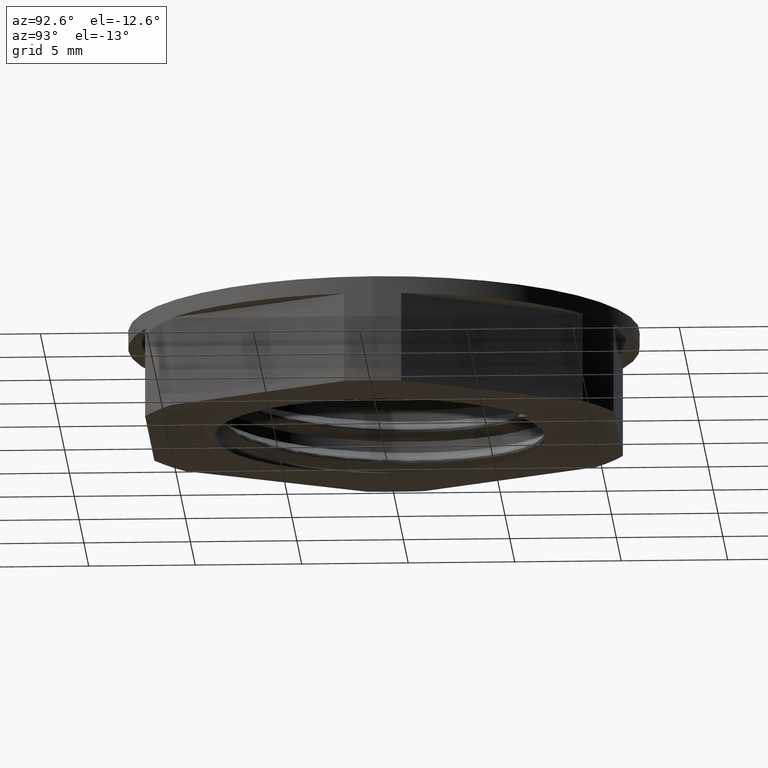
[diagram: clean part render]
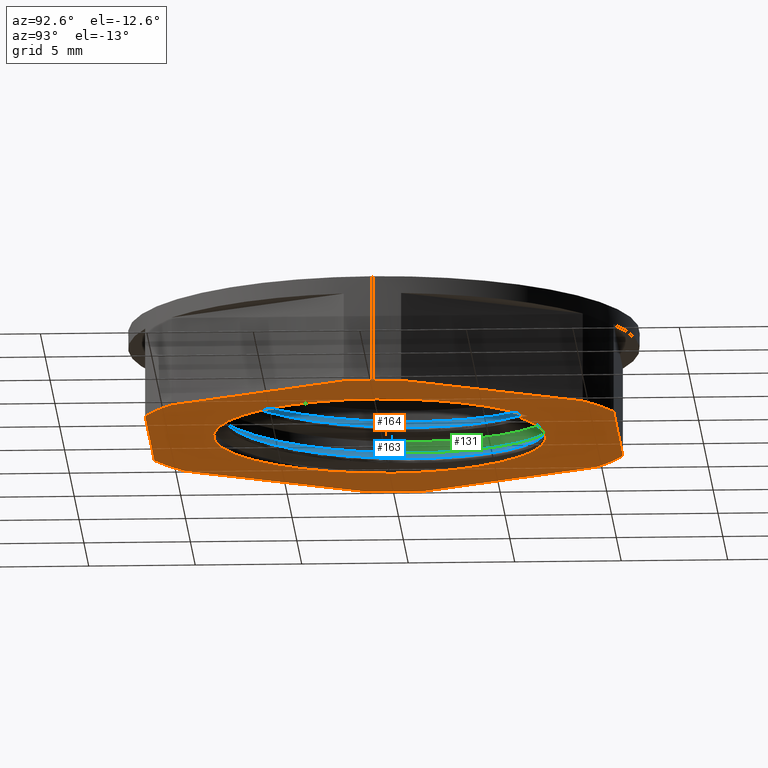
[diagram: same view with three faces highlighted in distinct colors, each labeled with its STEP entity id]
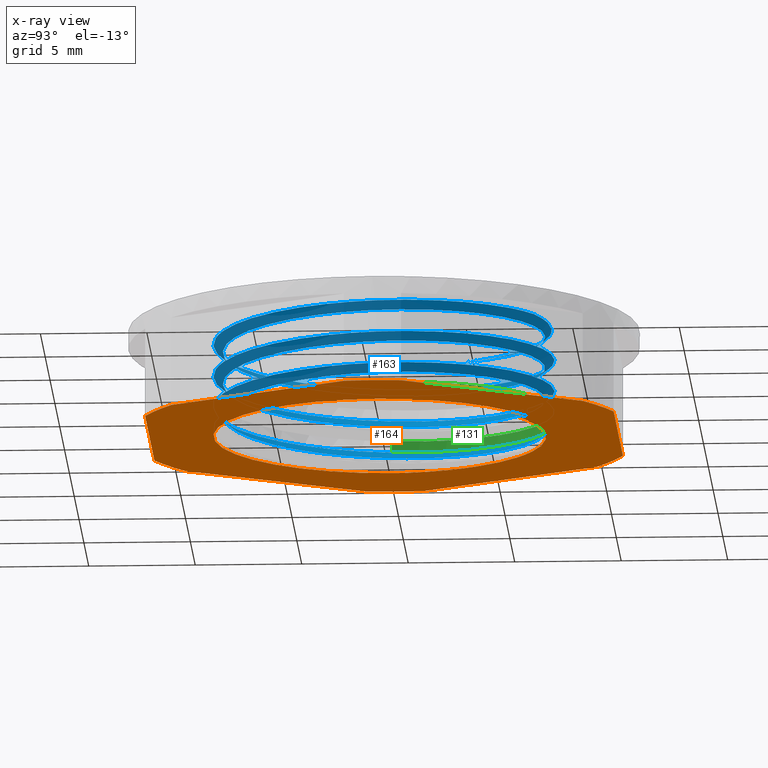
[diagram: x-ray of the same camera — body ghosted, the three highlighted faces saturated]
A machine part, auxiliary view with three faces highlighted in distinct colors.
The next image is the same camera in x-ray (body ghosted, the three faces saturated) — at least one of them is partly hidden behind the body in this view.
Their STEP definitions:

[orange] entity #164 — the highlighted planar face has unit normal (0, 0, 1).
#9 = AXIS2_PLACEMENT_3D ( 'NONE', #1110, #1094, #1095 ) ;
#11 = CIRCLE ( 'NONE', #9, 12.00000000000000200 ) ;
#15 = CIRCLE ( 'NONE', #18, 12.00000000000000200 ) ;
#18 = AXIS2_PLACEMENT_3D ( 'NONE', #1099, #1088, #1111 ) ;
#33 = VECTOR ( 'NONE', #546, 1000.000000000000000 ) ;
#37 = CIRCLE ( 'NONE', #63, 8.000000000000000000 ) ;
#38 = VECTOR ( 'NONE', #597, 1000.000000000000100 ) ;
#42 = AXIS2_PLACEMENT_3D ( 'NONE', #520, #534, #512 ) ;
#44 = CIRCLE ( 'NONE', #75, 8.000000000000000000 ) ;
#49 = CIRCLE ( 'NONE', #68, 12.00000000000000200 ) ;
#52 = CIRCLE ( 'NONE', #70, 12.00000000000000200 ) ;
#54 = CIRCLE ( 'NONE', #60, 12.00000000000000200 ) ;
#60 = AXIS2_PLACEMENT_3D ( 'NONE', #567, #550, #551 ) ;
#61 = CIRCLE ( 'NONE', #42, 12.00000000000000200 ) ;
#63 = AXIS2_PLACEMENT_3D ( 'NONE', #600, #618, #620 ) ;
#68 = AXIS2_PLACEMENT_3D ( 'NONE', #511, #487, #488 ) ;
#69 = CIRCLE ( 'NONE', #74, 12.00000000000000200 ) ;
#70 = AXIS2_PLACEMENT_3D ( 'NONE', #616, #587, #609 ) ;
#74 = AXIS2_PLACEMENT_3D ( 'NONE', #595, #624, #608 ) ;
#75 = AXIS2_PLACEMENT_3D ( 'NONE', #531, #526, #515 ) ;
#77 = AXIS2_PLACEMENT_3D ( 'NONE', #345, #388, #359 ) ;
#79 = VECTOR ( 'NONE', #644, 1000.000000000000100 ) ;
#83 = VECTOR ( 'NONE', #607, 1000.000000000000100 ) ;
#90 = CIRCLE ( 'NONE', #94, 12.00000000000000200 ) ;
#91 = CIRCLE ( 'NONE', #93, 8.000000000000000000 ) ;
#92 = VECTOR ( 'NONE', #627, 1000.000000000000000 ) ;
#93 = AXIS2_PLACEMENT_3D ( 'NONE', #817, #827, #821 ) ;
#94 = AXIS2_PLACEMENT_3D ( 'NONE', #633, #661, #666 ) ;
#102 = VECTOR ( 'NONE', #673, 1000.000000000000100 ) ;
#105 = VECTOR ( 'NONE', #637, 1000.000000000000000 ) ;
#159 = EDGE_CURVE ( 'NONE', #2508, #2506, #15, .T. ) ;
#161 = EDGE_CURVE ( 'NONE', #1517, #2497, #11, .T. ) ;
#164 = ADVANCED_FACE ( 'NONE', ( #1483, #341 ), #374, .F. ) ;
#184 = EDGE_CURVE ( 'NONE', #1527, #1495, #44, .T. ) ;
#187 = EDGE_CURVE ( 'NONE', #2499, #2503, #49, .T. ) ;
#189 = EDGE_CURVE ( 'NONE', #2509, #1507, #61, .T. ) ;
#193 = EDGE_CURVE ( 'NONE', #2506, #2509, #510, .T. ) ;
#194 = EDGE_CURVE ( 'NONE', #1499, #1523, #261, .T. ) ;
#195 = EDGE_CURVE ( 'NONE', #1503, #1494, #262, .T. ) ;
#197 = EDGE_CURVE ( 'NONE', #1492, #1498, #54, .T. ) ;
#201 = EDGE_CURVE ( 'NONE', #1504, #1517, #69, .T. ) ;
#202 = EDGE_CURVE ( 'NONE', #1522, #1499, #535, .T. ) ;
#203 = EDGE_CURVE ( 'NONE', #1515, #1506, #52, .T. ) ;
#204 = EDGE_CURVE ( 'NONE', #1495, #1494, #37, .T. ) ;
#210 = EDGE_CURVE ( 'NONE', #1553, #1492, #626, .T. ) ;
#214 = EDGE_CURVE ( 'NONE', #1498, #1515, #645, .T. ) ;
#215 = EDGE_CURVE ( 'NONE', #1507, #2499, #625, .T. ) ;
#216 = EDGE_CURVE ( 'NONE', #1504, #1506, #586, .T. ) ;
#222 = EDGE_CURVE ( 'NONE', #2503, #1553, #90, .T. ) ;
#227 = EDGE_CURVE ( 'NONE', #2497, #2508, #660, .T. ) ;
#242 = EDGE_CURVE ( 'NONE', #1522, #1527, #91, .T. ) ;
#246 = EDGE_CURVE ( 'NONE', #1523, #1503, #268, .T. ) ;
#261 = B_SPLINE_CURVE_WITH_KNOTS ( 'NONE', 3,
 ( #570, #548, #575, #544 ),
 .UNSPECIFIED., .F., .F.,
 ( 4, 4 ),
 ( 8.194909182825676900E-055, 0.0007006176823528355300 ),
 .UNSPECIFIED. ) ;
#262 = B_SPLINE_CURVE_WITH_KNOTS ( 'NONE', 3,
 ( #574, #558, #559, #554, #553, #569, #543, #538, #577, #568, #571, #561, #560, #557, #547, #552, #545, #536, #563, #565, #564, #572 ),
 .UNSPECIFIED., .F., .F.,
 ( 4, 2, 2, 2, 2, 2, 2, 2, 2, 2, 4 ),
 ( 2.168404344971008900E-019, 0.001496155060673636600, 0.002244232591010455500, 0.002992310121347274000, 0.004488465182020910100, 0.005984620242694546300, 0.006732697773031366500, 0.007480775303368185000, 0.008976930364041822000, 0.01047308542471545700, 0.01196924048538909600 ),
 .UNSPECIFIED. ) ;
#268 = B_SPLINE_CURVE_WITH_KNOTS ( 'NONE', 3,
 ( #2742, #2745, #2690, #2725, #2720, #2718 ),
 .UNSPECIFIED., .F., .F.,
 ( 4, 2, 4 ),
 ( 1.706885406929665100E-009, 0.001406342779967597300, 0.002812683853049787800 ),
 .UNSPECIFIED. ) ;
#341 = FACE_OUTER_BOUND ( 'NONE', #1700, .T. ) ;
#345 = CARTESIAN_POINT ( 'NONE',  ( 12.70170592217177100, -3.963370048831593200E-014, 0.0000000000000000000 ) ) ;
#359 = DIRECTION ( 'NONE',  ( 1.000000000000000000, 0.0000000000000000000, -0.0000000000000000000 ) ) ;
#374 = PLANE ( 'NONE',  #77 ) ;
#388 = DIRECTION ( 'NONE',  ( 0.0000000000000000000, 0.0000000000000000000, 1.000000000000000000 ) ) ;
#487 = DIRECTION ( 'NONE',  ( 0.0000000000000000000, 0.0000000000000000000, 1.000000000000000000 ) ) ;
#488 = DIRECTION ( 'NONE',  ( 1.000000000000000000, 0.0000000000000000000, 0.0000000000000000000 ) ) ;
#510 = LINE ( 'NONE', #576, #33 ) ;
#511 = CARTESIAN_POINT ( 'NONE',  ( 0.0000000000000000000, 0.0000000000000000000, 0.0000000000000000000 ) ) ;
#512 = DIRECTION ( 'NONE',  ( 1.000000000000000000, 0.0000000000000000000, 0.0000000000000000000 ) ) ;
#515 = DIRECTION ( 'NONE',  ( -1.000000000000000000, 0.0000000000000000000, 0.0000000000000000000 ) ) ;
#520 = CARTESIAN_POINT ( 'NONE',  ( 0.0000000000000000000, 0.0000000000000000000, 0.0000000000000000000 ) ) ;
#526 = DIRECTION ( 'NONE',  ( 0.0000000000000000000, 0.0000000000000000000, -1.000000000000000000 ) ) ;
#531 = CARTESIAN_POINT ( 'NONE',  ( 0.0000000000000000000, 0.0000000000000000000, 0.0000000000000000000 ) ) ;
#534 = DIRECTION ( 'NONE',  ( 0.0000000000000000000, 0.0000000000000000000, 1.000000000000000000 ) ) ;
#535 = LINE ( 'NONE', #542, #38 ) ;
#536 = CARTESIAN_POINT ( 'NONE',  ( -7.283014948492168900, 3.124800871535717800, 1.127400515843926400E-014 ) ) ;
#538 = CARTESIAN_POINT ( 'NONE',  ( -3.003853177334058000, 7.098275823220528300, 3.862811491854184300E-018 ) ) ;
#542 = CARTESIAN_POINT ( 'NONE',  ( 3.764745423058860400, 6.520730350300337500, 0.0000000000000000000 ) ) ;
#543 = CARTESIAN_POINT ( 'NONE',  ( -2.293219016427007900, 7.318002226821902500, 3.862811491854158900E-018 ) ) ;
#544 = CARTESIAN_POINT ( 'NONE',  ( 3.133669770107636100, 6.826942104467073900, 0.0000000000000000000 ) ) ;
#545 = CARTESIAN_POINT ( 'NONE',  ( -6.804143251527945000, 3.995388682104982400, 1.127400515843927200E-014 ) ) ;
#546 = DIRECTION ( 'NONE',  ( -1.000000000000000000, -0.0000000000000000000, 0.0000000000000000000 ) ) ;
#547 = CARTESIAN_POINT ( 'NONE',  ( -6.047141742188511400, 4.981976319172869900, 3.636604634013293300E-017 ) ) ;
#548 = CARTESIAN_POINT ( 'NONE',  ( 3.552715935922696300, 6.620572188384486800, 0.0000000000000000000 ) ) ;
#550 = DIRECTION ( 'NONE',  ( 0.0000000000000000000, 0.0000000000000000000, 1.000000000000000000 ) ) ;
#551 = DIRECTION ( 'NONE',  ( 1.000000000000000000, 0.0000000000000000000, 0.0000000000000000000 ) ) ;
#552 = CARTESIAN_POINT ( 'NONE',  ( -6.525865857771565400, 4.405759385610811500, 3.636604634013366600E-017 ) ) ;
#553 = CARTESIAN_POINT ( 'NONE',  ( -1.563137871701153000, 7.480903411029371100, -1.059273437301605100E-016 ) ) ;
#554 = CARTESIAN_POINT ( 'NONE',  ( -1.313767306003189100, 7.519419386386485500, 5.186773145984986800E-018 ) ) ;
#557 = CARTESIAN_POINT ( 'NONE',  ( -5.876671654762140500, 5.168041631374149100, -3.358860403868636900E-016 ) ) ;
#558 = CARTESIAN_POINT ( 'NONE',  ( -0.06890114016801685000, 7.599007192534878100, -2.747084396898558700E-015 ) ) ;
#559 = CARTESIAN_POINT ( 'NONE',  ( -0.5678109952904520900, 7.596782043444950000, 5.186773145985150100E-018 ) ) ;
#560 = CARTESIAN_POINT ( 'NONE',  ( -5.522193639116971500, 5.519238664571912700, -3.358860403868635900E-016 ) ) ;
#561 = CARTESIAN_POINT ( 'NONE',  ( -5.337497578335818300, 5.685327971127282600, -5.488339656673960100E-016 ) ) ;
#563 = CARTESIAN_POINT ( 'NONE',  ( -7.484432842580131900, 2.660268892600717200, 2.235741482730175900E-015 ) ) ;
#564 = CARTESIAN_POINT ( 'NONE',  ( -7.901946618155189800, 1.231718332958290100, 2.112524390960294600E-017 ) ) ;
#565 = CARTESIAN_POINT ( 'NONE',  ( -7.792663550340240200, 1.715191947250777900, 2.235741482730164400E-015 ) ) ;
#567 = CARTESIAN_POINT ( 'NONE',  ( 0.0000000000000000000, 0.0000000000000000000, 0.0000000000000000000 ) ) ;
#568 = CARTESIAN_POINT ( 'NONE',  ( -4.347669749951560200, 6.432504493744768400, 3.420771519155539300E-017 ) ) ;
#569 = CARTESIAN_POINT ( 'NONE',  ( -2.052536911971464500, 7.380128703295911300, -1.059273437301605200E-016 ) ) ;
#570 = CARTESIAN_POINT ( 'NONE',  ( 3.754898245705956300, 6.503674538813966100, -2.117582368135750800E-018 ) ) ;
#571 = CARTESIAN_POINT ( 'NONE',  ( -4.761470099540506600, 6.155618970242478800, -5.488339656673953200E-016 ) ) ;
#572 = CARTESIAN_POINT ( 'NONE',  ( -7.965960808858826100, 0.7372030871647475800, 2.112524390960568500E-017 ) ) ;
#574 = CARTESIAN_POINT ( 'NONE',  ( 0.4316424328562513700, 7.551019650600586000, -2.743567003304576900E-015 ) ) ;
#575 = CARTESIAN_POINT ( 'NONE',  ( 3.345414079929243600, 6.728418051305981300, -7.318136513633076700E-018 ) ) ;
#576 = CARTESIAN_POINT ( 'NONE',  ( 12.70170592217177100, 10.99999999999998900, 0.0000000000000000000 ) ) ;
#577 = CARTESIAN_POINT ( 'NONE',  ( -3.462358938085114500, 6.907229153375300100, 3.420771519155516500E-017 ) ) ;
#586 = LINE ( 'NONE', #648, #105 ) ;
#587 = DIRECTION ( 'NONE',  ( 0.0000000000000000000, 0.0000000000000000000, 1.000000000000000000 ) ) ;
#595 = CARTESIAN_POINT ( 'NONE',  ( 0.0000000000000000000, 0.0000000000000000000, 0.0000000000000000000 ) ) ;
#597 = DIRECTION ( 'NONE',  ( -0.4999999999999859000, -0.8660254037844468100, 0.0000000000000000000 ) ) ;
#600 = CARTESIAN_POINT ( 'NONE',  ( 0.0000000000000000000, 0.0000000000000000000, 0.0000000000000000000 ) ) ;
#605 = CARTESIAN_POINT ( 'NONE',  ( -11.92419520328518500, -1.346688068540971900, 0.0000000000000000000 ) ) ;
#607 = DIRECTION ( 'NONE',  ( 0.4999999999999993300, -0.8660254037844389300, 0.0000000000000000000 ) ) ;
#608 = DIRECTION ( 'NONE',  ( 1.000000000000000000, 0.0000000000000000000, 0.0000000000000000000 ) ) ;
#609 = DIRECTION ( 'NONE',  ( 1.000000000000000000, 0.0000000000000000000, 0.0000000000000000000 ) ) ;
#616 = CARTESIAN_POINT ( 'NONE',  ( 0.0000000000000000000, 0.0000000000000000000, 0.0000000000000000000 ) ) ;
#618 = DIRECTION ( 'NONE',  ( 0.0000000000000000000, 0.0000000000000000000, -1.000000000000000000 ) ) ;
#620 = DIRECTION ( 'NONE',  ( -1.000000000000000000, 0.0000000000000000000, 0.0000000000000000000 ) ) ;
#624 = DIRECTION ( 'NONE',  ( 0.0000000000000000000, 0.0000000000000000000, 1.000000000000000000 ) ) ;
#625 = LINE ( 'NONE', #672, #102 ) ;
#626 = LINE ( 'NONE', #605, #83 ) ;
#627 = DIRECTION ( 'NONE',  ( 1.000000000000000000, 0.0000000000000000000, -0.0000000000000000000 ) ) ;
#631 = CARTESIAN_POINT ( 'NONE',  ( 11.92419520328519200, 1.346688068540912400, 0.0000000000000000000 ) ) ;
#633 = CARTESIAN_POINT ( 'NONE',  ( 0.0000000000000000000, 0.0000000000000000000, 0.0000000000000000000 ) ) ;
#637 = DIRECTION ( 'NONE',  ( -0.4999999999999998900, -0.8660254037844387100, 0.0000000000000000000 ) ) ;
#642 = CARTESIAN_POINT ( 'NONE',  ( 12.70170592217177100, -11.00000000000002300, 0.0000000000000000000 ) ) ;
#644 = DIRECTION ( 'NONE',  ( -0.4999999999999999400, 0.8660254037844386000, 0.0000000000000000000 ) ) ;
#645 = LINE ( 'NONE', #642, #92 ) ;
#648 = CARTESIAN_POINT ( 'NONE',  ( 6.350852961085898600, -11.00000000000002300, 0.0000000000000000000 ) ) ;
#660 = LINE ( 'NONE', #631, #79 ) ;
#661 = DIRECTION ( 'NONE',  ( 0.0000000000000000000, 0.0000000000000000000, 1.000000000000000000 ) ) ;
#666 = DIRECTION ( 'NONE',  ( 1.000000000000000000, 0.0000000000000000000, 0.0000000000000000000 ) ) ;
#672 = CARTESIAN_POINT ( 'NONE',  ( -7.128363679972420800, 9.653311931459075600, 0.0000000000000000000 ) ) ;
#673 = DIRECTION ( 'NONE',  ( -0.4999999999999996700, -0.8660254037844388200, 0.0000000000000000000 ) ) ;
#817 = CARTESIAN_POINT ( 'NONE',  ( 0.0000000000000000000, 0.0000000000000000000, 0.0000000000000000000 ) ) ;
#821 = DIRECTION ( 'NONE',  ( -1.000000000000000000, 0.0000000000000000000, 0.0000000000000000000 ) ) ;
#827 = DIRECTION ( 'NONE',  ( 0.0000000000000000000, 0.0000000000000000000, -1.000000000000000000 ) ) ;
#1088 = DIRECTION ( 'NONE',  ( 0.0000000000000000000, 0.0000000000000000000, 1.000000000000000000 ) ) ;
#1094 = DIRECTION ( 'NONE',  ( 0.0000000000000000000, 0.0000000000000000000, 1.000000000000000000 ) ) ;
#1095 = DIRECTION ( 'NONE',  ( 1.000000000000000000, 0.0000000000000000000, 0.0000000000000000000 ) ) ;
#1099 = CARTESIAN_POINT ( 'NONE',  ( 0.0000000000000000000, 0.0000000000000000000, 0.0000000000000000000 ) ) ;
#1110 = CARTESIAN_POINT ( 'NONE',  ( 0.0000000000000000000, 0.0000000000000000000, 0.0000000000000000000 ) ) ;
#1111 = DIRECTION ( 'NONE',  ( 1.000000000000000000, 0.0000000000000000000, 0.0000000000000000000 ) ) ;
#1483 = FACE_BOUND ( 'NONE', #1699, .T. ) ;
#1492 = VERTEX_POINT ( 'NONE', #2548 ) ;
#1494 = VERTEX_POINT ( 'NONE', #2562 ) ;
#1495 = VERTEX_POINT ( 'NONE', #2586 ) ;
#1498 = VERTEX_POINT ( 'NONE', #2567 ) ;
#1499 = VERTEX_POINT ( 'NONE', #2575 ) ;
#1503 = VERTEX_POINT ( 'NONE', #2577 ) ;
#1504 = VERTEX_POINT ( 'NONE', #2535 ) ;
#1506 = VERTEX_POINT ( 'NONE', #2691 ) ;
#1507 = VERTEX_POINT ( 'NONE', #2537 ) ;
#1515 = VERTEX_POINT ( 'NONE', #2642 ) ;
#1517 = VERTEX_POINT ( 'NONE', #2622 ) ;
#1522 = VERTEX_POINT ( 'NONE', #2641 ) ;
#1523 = VERTEX_POINT ( 'NONE', #2614 ) ;
#1527 = VERTEX_POINT ( 'NONE', #2644 ) ;
#1553 = VERTEX_POINT ( 'NONE', #2607 ) ;
#1588 = ORIENTED_EDGE ( 'NONE', *, *, #202, .T. ) ;
#1595 = ORIENTED_EDGE ( 'NONE', *, *, #195, .T. ) ;
#1605 = ORIENTED_EDGE ( 'NONE', *, *, #194, .T. ) ;
#1610 = ORIENTED_EDGE ( 'NONE', *, *, #246, .T. ) ;
#1615 = ORIENTED_EDGE ( 'NONE', *, *, #204, .F. ) ;
#1617 = ORIENTED_EDGE ( 'NONE', *, *, #193, .F. ) ;
#1634 = ORIENTED_EDGE ( 'NONE', *, *, #203, .F. ) ;
#1642 = ORIENTED_EDGE ( 'NONE', *, *, #197, .F. ) ;
#1652 = ORIENTED_EDGE ( 'NONE', *, *, #210, .F. ) ;
#1656 = ORIENTED_EDGE ( 'NONE', *, *, #216, .T. ) ;
#1657 = ORIENTED_EDGE ( 'NONE', *, *, #214, .F. ) ;
#1662 = ORIENTED_EDGE ( 'NONE', *, *, #242, .F. ) ;
#1683 = ORIENTED_EDGE ( 'NONE', *, *, #187, .F. ) ;
#1684 = ORIENTED_EDGE ( 'NONE', *, *, #227, .F. ) ;
#1688 = ORIENTED_EDGE ( 'NONE', *, *, #222, .F. ) ;
#1692 = ORIENTED_EDGE ( 'NONE', *, *, #184, .F. ) ;
#1699 = EDGE_LOOP ( 'NONE', ( #1662, #1588, #1605, #1610, #1595, #1615, #1692 ) ) ;
#1700 = EDGE_LOOP ( 'NONE', ( #1716, #1656, #1634, #1657, #1642, #1652, #1688, #1683, #1704, #1711, #1617, #1714, #1684, #1707 ) ) ;
#1704 = ORIENTED_EDGE ( 'NONE', *, *, #215, .F. ) ;
#1707 = ORIENTED_EDGE ( 'NONE', *, *, #161, .F. ) ;
#1711 = ORIENTED_EDGE ( 'NONE', *, *, #189, .F. ) ;
#1714 = ORIENTED_EDGE ( 'NONE', *, *, #159, .F. ) ;
#1716 = ORIENTED_EDGE ( 'NONE', *, *, #201, .F. ) ;
#2497 = VERTEX_POINT ( 'NONE', #2649 ) ;
#2499 = VERTEX_POINT ( 'NONE', #2624 ) ;
#2503 = VERTEX_POINT ( 'NONE', #2612 ) ;
#2506 = VERTEX_POINT ( 'NONE', #2638 ) ;
#2508 = VERTEX_POINT ( 'NONE', #2626 ) ;
#2509 = VERTEX_POINT ( 'NONE', #2633 ) ;
#2535 = CARTESIAN_POINT ( 'NONE',  ( 11.92419520328518200, -1.346688068541012300, 0.0000000000000000000 ) ) ;
#2537 = CARTESIAN_POINT ( 'NONE',  ( -7.128363679972419000, 9.653311931459072100, 0.0000000000000000000 ) ) ;
#2548 = CARTESIAN_POINT ( 'NONE',  ( -7.128363679972484800, -9.653311931459025900, 0.0000000000000000000 ) ) ;
#2562 = CARTESIAN_POINT ( 'NONE',  ( -7.965960808858826100, 0.7372030871647475800, 2.112524390960568500E-017 ) ) ;
#2567 = CARTESIAN_POINT ( 'NONE',  ( -4.795831523312672900, -11.00000000000002300, 0.0000000000000000000 ) ) ;
#2575 = CARTESIAN_POINT ( 'NONE',  ( 3.754898245705956300, 6.503674538813966100, -2.117582368135750800E-018 ) ) ;
#2577 = CARTESIAN_POINT ( 'NONE',  ( 0.4316424328562513700, 7.551019650600586000, -2.743567003304576900E-015 ) ) ;
#2586 = CARTESIAN_POINT ( 'NONE',  ( -8.000000000000000000, 0.0000000000000000000, 0.0000000000000000000 ) ) ;
#2607 = CARTESIAN_POINT ( 'NONE',  ( -11.92419520328518500, -1.346688068540971000, 0.0000000000000000000 ) ) ;
#2612 = CARTESIAN_POINT ( 'NONE',  ( -12.00000000000000200, 1.469576158976824100E-015, 0.0000000000000000000 ) ) ;
#2614 = CARTESIAN_POINT ( 'NONE',  ( 3.133669770107636100, 6.826942104467073900, 0.0000000000000000000 ) ) ;
#2622 = CARTESIAN_POINT ( 'NONE',  ( 12.00000000000000200, 0.0000000000000000000, 0.0000000000000000000 ) ) ;
#2624 = CARTESIAN_POINT ( 'NONE',  ( -11.92419520328519200, 1.346688068540901300, 0.0000000000000000000 ) ) ;
#2626 = CARTESIAN_POINT ( 'NONE',  ( 7.128363679972425300, 9.653311931459070300, 0.0000000000000000000 ) ) ;
#2633 = CARTESIAN_POINT ( 'NONE',  ( -4.795831523312752900, 10.99999999999998900, 0.0000000000000000000 ) ) ;
#2638 = CARTESIAN_POINT ( 'NONE',  ( 4.795831523312752900, 10.99999999999998900, 0.0000000000000000000 ) ) ;
#2641 = CARTESIAN_POINT ( 'NONE',  ( 3.999999999999991600, 6.928203230275514100, 0.0000000000000000000 ) ) ;
#2642 = CARTESIAN_POINT ( 'NONE',  ( 4.795831523312671200, -11.00000000000002300, 0.0000000000000000000 ) ) ;
#2644 = CARTESIAN_POINT ( 'NONE',  ( 8.000000000000000000, 9.797174393178825700E-016, 0.0000000000000000000 ) ) ;
#2649 = CARTESIAN_POINT ( 'NONE',  ( 11.92419520328519200, 1.346688068540912200, 0.0000000000000000000 ) ) ;
#2690 = CARTESIAN_POINT ( 'NONE',  ( 2.266574668491310600, 7.184365791325329400, 4.718676003929486100E-015 ) ) ;
#2691 = CARTESIAN_POINT ( 'NONE',  ( 7.128363679972511400, -9.653311931459006300, 0.0000000000000000000 ) ) ;
#2718 = CARTESIAN_POINT ( 'NONE',  ( 0.4316424328562513700, 7.551019650600586000, -2.743567003304576900E-015 ) ) ;
#2720 = CARTESIAN_POINT ( 'NONE',  ( 0.8983019182137425000, 7.506280605231717500, 9.285919088107864900E-016 ) ) ;
#2725 = CARTESIAN_POINT ( 'NONE',  ( 1.361537313419346300, 7.425386229519440400, 4.718676003929484500E-015 ) ) ;
#2742 = CARTESIAN_POINT ( 'NONE',  ( 3.133669770107636100, 6.826942104467073900, 0.0000000000000000000 ) ) ;
#2745 = CARTESIAN_POINT ( 'NONE',  ( 2.708602550439940200, 7.024725158259758300, 4.333342374871278900E-031 ) ) ;

[blue] entity #163 — the highlighted face is a freeform B-spline surface patch.
#113 = VECTOR ( 'NONE', #646, 1000.000000000000100 ) ;
#158 = EDGE_CURVE ( 'NONE', #1508, #1496, #2533, .T. ) ;
#163 = ADVANCED_FACE ( 'NONE', ( #1104 ), #2520, .F. ) ;
#169 = EDGE_CURVE ( 'NONE', #1510, #1509, #2531, .T. ) ;
#179 = EDGE_CURVE ( 'NONE', #1490, #2505, #2517, .T. ) ;
#190 = EDGE_CURVE ( 'NONE', #1509, #1490, #2516, .T. ) ;
#217 = EDGE_CURVE ( 'NONE', #1497, #1535, #667, .T. ) ;
#234 = EDGE_CURVE ( 'NONE', #1497, #1508, #2521, .T. ) ;
#238 = EDGE_CURVE ( 'NONE', #1496, #1510, #2522, .T. ) ;
#240 = EDGE_CURVE ( 'NONE', #1505, #1514, #267, .T. ) ;
#241 = EDGE_CURVE ( 'NONE', #2505, #1514, #2523, .T. ) ;
#244 = EDGE_CURVE ( 'NONE', #1535, #1505, #2524, .T. ) ;
#267 = B_SPLINE_CURVE_WITH_KNOTS ( 'NONE', 3,
 ( #766, #777, #794, #825, #806, #790, #807, #812, #832, #808, #833, #829, #802, #803, #804, #800, #791, #820, #792, #798, #828, #826 ),
 .UNSPECIFIED., .F., .F.,
 ( 4, 2, 2, 2, 2, 2, 2, 2, 2, 2, 4 ),
 ( 0.0000000000000000000, 0.001494299387252017100, 0.002241449080878025600, 0.002988598774504034100, 0.004482898161756054600, 0.005977197549008076000, 0.006724347242634086700, 0.007471496936260098300, 0.008965796323512119700, 0.01046009571076414500, 0.01195439509801616800 ),
 .UNSPECIFIED. ) ;
#271 = CARTESIAN_POINT ( 'NONE',  ( -1.167066751661381700, -8.864752078756719600, 7.546843809402449900 ) ) ;
#272 = CARTESIAN_POINT ( 'NONE',  ( 6.494792560731676500, 4.983629613174391800, 1.524249919028871400 ) ) ;
#273 = CARTESIAN_POINT ( 'NONE',  ( -7.305631358611343300, -1.957538022739395900, 2.180499919028870500 ) ) ;
#274 = CARTESIAN_POINT ( 'NONE',  ( 1.957538022739395500, -7.305631358611344200, 2.555499919028870100 ) ) ;
#275 = CARTESIAN_POINT ( 'NONE',  ( -1.167066751661381700, -8.864752078756719600, 6.046843809402452600 ) ) ;
#276 = CARTESIAN_POINT ( 'NONE',  ( 8.864752078756719600, -1.167066751661376200, 6.421843809402452600 ) ) ;
#277 = CARTESIAN_POINT ( 'NONE',  ( 4.983629613174392700, -6.494792560731675700, 2.649249919028870500 ) ) ;
#278 = CARTESIAN_POINT ( 'NONE',  ( -8.116470156491013600, 1.068553567695602400, 0.5867499190288727500 ) ) ;
#279 = CARTESIAN_POINT ( 'NONE',  ( -7.305631358611343300, -1.957538022739395900, 0.6804999190288726400 ) ) ;
#280 = CARTESIAN_POINT ( 'NONE',  ( -7.979159600690128900, -2.138009371283960700, 7.265593809402449000 ) ) ;
#281 = CARTESIAN_POINT ( 'NONE',  ( 6.494792560731676500, 4.983629613174391800, 3.024249919028869200 ) ) ;
#282 = CARTESIAN_POINT ( 'NONE',  ( 3.781673064213637600, 6.550049884832705300, 3.117999919028869200 ) ) ;
#283 = CARTESIAN_POINT ( 'NONE',  ( 7.979159600690128900, 2.138009371283959400, 8.015593809402448100 ) ) ;
#284 = CARTESIAN_POINT ( 'NONE',  ( 2.138009371283960300, -7.979159600690128900, 6.140593809402451700 ) ) ;
#285 = CARTESIAN_POINT ( 'NONE',  ( 5.443085494229298300, -7.093567122623540800, 6.234343809402452600 ) ) ;
#286 = CARTESIAN_POINT ( 'NONE',  ( 2.138009371283960300, -7.979159600690128900, 7.640593809402449900 ) ) ;
#287 = CARTESIAN_POINT ( 'NONE',  ( 3.781673064213637600, 6.550049884832705300, 0.1179999190288734700 ) ) ;
#288 = CARTESIAN_POINT ( 'NONE',  ( 1.068553567695601700, 8.116470156491013600, 0.2117499190288733300 ) ) ;
#289 = CARTESIAN_POINT ( 'NONE',  ( -3.781673064213638500, -6.550049884832704400, 0.8679999190288724100 ) ) ;
#290 = CARTESIAN_POINT ( 'NONE',  ( 1.957538022739395500, -7.305631358611344200, 1.055499919028872300 ) ) ;
#291 = CARTESIAN_POINT ( 'NONE',  ( -8.116470156491013600, 1.068553567695602400, 2.086749919028871000 ) ) ;
#292 = CARTESIAN_POINT ( 'NONE',  ( 7.093567122623541700, 5.443085494229297400, 6.609343809402450800 ) ) ;
#293 = CARTESIAN_POINT ( 'NONE',  ( -4.983629613174396200, 6.494792560731673900, 0.3992499190288730200 ) ) ;
#294 = CARTESIAN_POINT ( 'NONE',  ( -6.550049884832705300, 3.781673064213638000, 1.992999919028871000 ) ) ;
#295 = CARTESIAN_POINT ( 'NONE',  ( 8.116470156491013600, -1.068553567695599700, 1.336749919028871900 ) ) ;
#296 = CARTESIAN_POINT ( 'NONE',  ( -1.068553567695603900, -8.116470156491015300, 2.461749919028870100 ) ) ;
#297 = CARTESIAN_POINT ( 'NONE',  ( 3.781673064213637600, 6.550049884832705300, 1.617999919028871400 ) ) ;
#298 = CARTESIAN_POINT ( 'NONE',  ( 6.550049884832704400, -3.781673064213638900, 2.742999919028869600 ) ) ;
#299 = CARTESIAN_POINT ( 'NONE',  ( 6.550049884832704400, -3.781673064213638900, 1.242999919028871900 ) ) ;
#300 = CARTESIAN_POINT ( 'NONE',  ( 8.116470156491013600, -1.068553567695599700, 2.836749919028870500 ) ) ;
#301 = CARTESIAN_POINT ( 'NONE',  ( -4.983629613174396200, 6.494792560731673900, 1.899249919028871000 ) ) ;
#302 = CARTESIAN_POINT ( 'NONE',  ( -3.781673064213638500, -6.550049884832704400, 2.367999919028870500 ) ) ;
#303 = CARTESIAN_POINT ( 'NONE',  ( 1.068553567695601700, 8.116470156491013600, 3.211749919028869600 ) ) ;
#304 = CARTESIAN_POINT ( 'NONE',  ( -1.957538022739395900, 7.305631358611343300, 1.805499919028871200 ) ) ;
#305 = CARTESIAN_POINT ( 'NONE',  ( -4.983629613174396200, 6.494792560731673900, 3.399249919028868700 ) ) ;
#306 = CARTESIAN_POINT ( 'NONE',  ( 7.305631358611343300, 1.957538022739395500, 2.930499919028869600 ) ) ;
#307 = CARTESIAN_POINT ( 'NONE',  ( 8.864752078756719600, -1.167066751661376200, 7.921843809402449000 ) ) ;
#308 = CARTESIAN_POINT ( 'NONE',  ( -1.957538022739395900, 7.305631358611343300, 3.305499919028869200 ) ) ;
#309 = CARTESIAN_POINT ( 'NONE',  ( -6.550049884832705300, 3.781673064213638000, 3.492999919028868700 ) ) ;
#310 = CARTESIAN_POINT ( 'NONE',  ( -1.068553567695603900, -8.116470156491015300, 0.9617499190288721900 ) ) ;
#311 = CARTESIAN_POINT ( 'NONE',  ( -8.116470156491013600, 1.068553567695602400, 3.586749919028868700 ) ) ;
#312 = CARTESIAN_POINT ( 'NONE',  ( -7.305631358611343300, -1.957538022739395900, 3.680499919028868300 ) ) ;
#313 = CARTESIAN_POINT ( 'NONE',  ( -5.443085494229302800, 7.093567122623539900, 6.984343809402449900 ) ) ;
#314 = CARTESIAN_POINT ( 'NONE',  ( 1.167066751661378900, 8.864752078756719600, 6.796843809402451700 ) ) ;
#315 = CARTESIAN_POINT ( 'NONE',  ( -7.153918786493011200, 4.130316937142459300, 7.078093809402449900 ) ) ;
#316 = CARTESIAN_POINT ( 'NONE',  ( -1.957538022739395900, 7.305631358611343300, 0.3054999190288731900 ) ) ;
#317 = CARTESIAN_POINT ( 'NONE',  ( 4.130316937142458400, 7.153918786493011200, 8.203093809402448100 ) ) ;
#318 = CARTESIAN_POINT ( 'NONE',  ( -7.093567122623539900, -5.443085494229302800, 7.359343809402449900 ) ) ;
#319 = CARTESIAN_POINT ( 'NONE',  ( 7.093567122623541700, 5.443085494229297400, 8.109343809402446400 ) ) ;
#320 = CARTESIAN_POINT ( 'NONE',  ( -2.138009371283960700, 7.979159600690128900, 6.890593809402450800 ) ) ;
#321 = CARTESIAN_POINT ( 'NONE',  ( 7.153918786493010300, -4.130316937142460200, 6.328093809402450800 ) ) ;
#322 = CARTESIAN_POINT ( 'NONE',  ( -8.864752078756719600, 1.167066751661379500, 7.171843809402449900 ) ) ;
#323 = CARTESIAN_POINT ( 'NONE',  ( 7.153918786493010300, -4.130316937142460200, 7.828093809402449000 ) ) ;
#324 = CARTESIAN_POINT ( 'NONE',  ( -6.550049884832705300, 3.781673064213638000, 0.4929999190288729100 ) ) ;
#325 = CARTESIAN_POINT ( 'NONE',  ( -6.494792560731673900, -4.983629613174396200, 0.7742499190288724100 ) ) ;
#326 = CARTESIAN_POINT ( 'NONE',  ( 4.983629613174392700, -6.494792560731675700, 1.149249919028872100 ) ) ;
#327 = CARTESIAN_POINT ( 'NONE',  ( -4.130316937142459300, -7.153918786493010300, 7.453093809402449900 ) ) ;
#328 = CARTESIAN_POINT ( 'NONE',  ( 7.305631358611343300, 1.957538022739395500, 1.430499919028871600 ) ) ;
#329 = CARTESIAN_POINT ( 'NONE',  ( 5.443085494229298300, -7.093567122623540800, 7.734343809402449000 ) ) ;
#330 = CARTESIAN_POINT ( 'NONE',  ( 1.068553567695601700, 8.116470156491013600, 1.711749919028871400 ) ) ;
#331 = CARTESIAN_POINT ( 'NONE',  ( 7.979159600690128900, 2.138009371283959400, 6.515593809402450800 ) ) ;
#332 = CARTESIAN_POINT ( 'NONE',  ( 4.130316937142458400, 7.153918786493011200, 6.703093809402450800 ) ) ;
#333 = CARTESIAN_POINT ( 'NONE',  ( -6.494792560731673900, -4.983629613174396200, 2.274249919028870100 ) ) ;
#334 = CARTESIAN_POINT ( 'NONE',  ( -1.957538022739395900, 7.305631358611343300, 4.805499919028867400 ) ) ;
#335 = CARTESIAN_POINT ( 'NONE',  ( -6.494792560731673900, -4.983629613174396200, 3.774249919028868300 ) ) ;
#336 = CARTESIAN_POINT ( 'NONE',  ( -4.983629613174396200, 6.494792560731673900, 4.899249919028866500 ) ) ;
#337 = CARTESIAN_POINT ( 'NONE',  ( 4.983629613174392700, -6.494792560731675700, 5.649249919028865600 ) ) ;
#338 = CARTESIAN_POINT ( 'NONE',  ( 3.781673064213637600, 6.550049884832705300, 7.617999919028863000 ) ) ;
#339 = CARTESIAN_POINT ( 'NONE',  ( -1.068553567695603900, -8.116470156491015300, 5.461749919028865600 ) ) ;
#340 = CARTESIAN_POINT ( 'NONE',  ( -7.305631358611343300, -1.957538022739395900, 6.680499919028863900 ) ) ;
#342 = CARTESIAN_POINT ( 'NONE',  ( 1.957538022739395500, -7.305631358611344200, 4.055499919028868300 ) ) ;
#344 = CARTESIAN_POINT ( 'NONE',  ( -8.116470156491013600, 1.068553567695602400, 6.586749919028863900 ) ) ;
#348 = CARTESIAN_POINT ( 'NONE',  ( 6.494792560731676500, 4.983629613174391800, 7.524249919028863000 ) ) ;
#349 = CARTESIAN_POINT ( 'NONE',  ( -3.781673064213638500, -6.550049884832704400, 3.867999919028868300 ) ) ;
#350 = CARTESIAN_POINT ( 'NONE',  ( -1.068553567695603900, -8.116470156491015300, 3.961749919028867900 ) ) ;
#351 = CARTESIAN_POINT ( 'NONE',  ( 8.116470156491013600, -1.068553567695599700, 7.336749919028863000 ) ) ;
#352 = CARTESIAN_POINT ( 'NONE',  ( 3.781673064213637600, 6.550049884832705300, 4.617999919028867400 ) ) ;
#353 = CARTESIAN_POINT ( 'NONE',  ( 1.957538022739395500, -7.305631358611344200, 5.555499919028866500 ) ) ;
#354 = CARTESIAN_POINT ( 'NONE',  ( -3.781673064213638500, -6.550049884832704400, 5.367999919028865600 ) ) ;
#355 = CARTESIAN_POINT ( 'NONE',  ( 7.305631358611343300, 1.957538022739395500, 7.430499919028863000 ) ) ;
#356 = CARTESIAN_POINT ( 'NONE',  ( -4.983629613174396200, 6.494792560731673900, 6.399249919028863900 ) ) ;
#357 = CARTESIAN_POINT ( 'NONE',  ( -6.550049884832705300, 3.781673064213638000, 4.992999919028866500 ) ) ;
#358 = CARTESIAN_POINT ( 'NONE',  ( -1.957538022739395900, 7.305631358611343300, 6.305499919028864800 ) ) ;
#360 = CARTESIAN_POINT ( 'NONE',  ( 1.068553567695601700, 8.116470156491013600, 4.711749919028867400 ) ) ;
#361 = CARTESIAN_POINT ( 'NONE',  ( 6.550049884832704400, -3.781673064213638900, 7.242999919028863000 ) ) ;
#362 = CARTESIAN_POINT ( 'NONE',  ( 3.781673064213637600, 6.550049884832705300, 6.117999919028864800 ) ) ;
#363 = CARTESIAN_POINT ( 'NONE',  ( -6.494792560731673900, -4.983629613174396200, 5.274249919028865600 ) ) ;
#364 = CARTESIAN_POINT ( 'NONE',  ( 4.983629613174392700, -6.494792560731675700, 4.149249919028867400 ) ) ;
#365 = CARTESIAN_POINT ( 'NONE',  ( 1.068553567695601700, 8.116470156491013600, 6.211749919028864800 ) ) ;
#366 = CARTESIAN_POINT ( 'NONE',  ( 1.957538022739395500, -7.305631358611344200, 7.055499919028863900 ) ) ;
#367 = CARTESIAN_POINT ( 'NONE',  ( 6.550049884832704400, -3.781673064213638900, 5.742999919028865600 ) ) ;
#368 = CARTESIAN_POINT ( 'NONE',  ( 8.116470156491013600, -1.068553567695599700, 5.836749919028865600 ) ) ;
#369 = CARTESIAN_POINT ( 'NONE',  ( 4.983629613174392700, -6.494792560731675700, 7.149249919028863000 ) ) ;
#371 = CARTESIAN_POINT ( 'NONE',  ( 7.305631358611343300, 1.957538022739395500, 4.430499919028866500 ) ) ;
#372 = CARTESIAN_POINT ( 'NONE',  ( -8.116470156491013600, 1.068553567695602400, 5.086749919028867400 ) ) ;
#373 = CARTESIAN_POINT ( 'NONE',  ( 7.305631358611343300, 1.957538022739395500, 5.930499919028864800 ) ) ;
#376 = CARTESIAN_POINT ( 'NONE',  ( -3.781673064213638500, -6.550049884832704400, 6.867999919028863900 ) ) ;
#377 = CARTESIAN_POINT ( 'NONE',  ( -6.550049884832705300, 3.781673064213638000, 6.492999919028864800 ) ) ;
#378 = CARTESIAN_POINT ( 'NONE',  ( -1.068553567695603900, -8.116470156491015300, 6.961749919028863900 ) ) ;
#380 = CARTESIAN_POINT ( 'NONE',  ( -7.305631358611343300, -1.957538022739395900, 5.180499919028865600 ) ) ;
#382 = CARTESIAN_POINT ( 'NONE',  ( 6.494792560731676500, 4.983629613174391800, 6.024249919028864800 ) ) ;
#384 = CARTESIAN_POINT ( 'NONE',  ( 6.550049884832704400, -3.781673064213638900, 4.242999919028867400 ) ) ;
#386 = CARTESIAN_POINT ( 'NONE',  ( 6.494792560731676500, 4.983629613174391800, 4.524249919028867400 ) ) ;
#387 = CARTESIAN_POINT ( 'NONE',  ( -6.494792560731673900, -4.983629613174396200, 6.774249919028863900 ) ) ;
#389 = CARTESIAN_POINT ( 'NONE',  ( 8.116470156491013600, -1.068553567695599700, 4.336749919028868300 ) ) ;
#392 = CARTESIAN_POINT ( 'NONE',  ( 2.070552360820166800, -7.727406610312546500, 2.921896021617674100 ) ) ;
#393 = CARTESIAN_POINT ( 'NONE',  ( 6.928203230275509700, -4.000000000000000000, 3.109396021617673300 ) ) ;
#394 = CARTESIAN_POINT ( 'NONE',  ( -8.000000000000000000, -1.053219980699167800, 2.517098779880569700 ) ) ;
#395 = CARTESIAN_POINT ( 'NONE',  ( -1.130244259142797500, -8.585057479767890200, 2.828146021617674100 ) ) ;
#403 = CARTESIAN_POINT ( 'NONE',  ( -7.999999999999998200, -8.978228869738910500E-016, 2.485122400749121900 ) ) ;
#404 = CARTESIAN_POINT ( 'NONE',  ( -7.727406610312546500, -2.070552360820166800, 2.546896021617674100 ) ) ;
#406 = CARTESIAN_POINT ( 'NONE',  ( -6.869755740857202800, -5.271348980783130900, 2.640646021617674100 ) ) ;
#409 = CARTESIAN_POINT ( 'NONE',  ( 5.271348980783128200, -6.869755740857205400, 3.015646021617673700 ) ) ;
#420 = CARTESIAN_POINT ( 'NONE',  ( 8.000000000000000000, -2.143593539448978500, 3.170041637967123900 ) ) ;
#424 = CARTESIAN_POINT ( 'NONE',  ( 7.999999999999998200, 1.571190052204309300E-015, 3.235122400749120200 ) ) ;
#425 = CARTESIAN_POINT ( 'NONE',  ( -3.999999999999999100, -6.928203230275509700, 2.734396021617673700 ) ) ;
#439 = CARTESIAN_POINT ( 'NONE',  ( -3.999999999999999100, -6.928203230275509700, 4.234396021617671500 ) ) ;
#442 = CARTESIAN_POINT ( 'NONE',  ( -7.727406610312546500, -2.070552360820166800, 4.046896021617672400 ) ) ;
#456 = CARTESIAN_POINT ( 'NONE',  ( -1.130244259142797500, -8.585057479767890200, 4.328146021617671500 ) ) ;
#457 = CARTESIAN_POINT ( 'NONE',  ( 6.928203230275509700, -4.000000000000000000, 4.609396021617671500 ) ) ;
#458 = CARTESIAN_POINT ( 'NONE',  ( 7.999999999999998200, -2.143593539448983800, 4.670041637967121200 ) ) ;
#462 = CARTESIAN_POINT ( 'NONE',  ( -8.000000000000000000, 3.927975130510773700E-015, 3.985122400749120200 ) ) ;
#463 = CARTESIAN_POINT ( 'NONE',  ( 2.070552360820166800, -7.727406610312546500, 4.421896021617671500 ) ) ;
#470 = CARTESIAN_POINT ( 'NONE',  ( -8.000000000000001800, -1.053219980699165300, 4.017098779880568000 ) ) ;
#471 = CARTESIAN_POINT ( 'NONE',  ( 5.271348980783128200, -6.869755740857205400, 4.515646021617671500 ) ) ;
#472 = CARTESIAN_POINT ( 'NONE',  ( 7.999999999999998200, -7.855950261021547400E-015, 4.735122400749117900 ) ) ;
#484 = CARTESIAN_POINT ( 'NONE',  ( -6.869755740857202800, -5.271348980783130900, 4.140646021617671500 ) ) ;
#489 = CARTESIAN_POINT ( 'NONE',  ( 7.999999999999998200, 1.571190052204309300E-015, 3.235122400749120200 ) ) ;
#490 = CARTESIAN_POINT ( 'NONE',  ( 7.727406610312546500, 2.070552360820165900, 3.296896021617673300 ) ) ;
#491 = CARTESIAN_POINT ( 'NONE',  ( -2.070552360820166800, 7.727406610312546500, 3.671896021617672400 ) ) ;
#501 = CARTESIAN_POINT ( 'NONE',  ( 8.000000000000000000, 1.053219980699168000, 3.267098779880568400 ) ) ;
#505 = CARTESIAN_POINT ( 'NONE',  ( -8.000000000000000000, 2.143593539448982500, 3.920041637967122600 ) ) ;
#506 = CARTESIAN_POINT ( 'NONE',  ( -8.000000000000000000, 3.927975130510773700E-015, 3.985122400749120200 ) ) ;
#513 = CARTESIAN_POINT ( 'NONE',  ( -5.271348980783130900, 6.869755740857202800, 3.765646021617672400 ) ) ;
#514 = CARTESIAN_POINT ( 'NONE',  ( -6.928203230275510500, 3.999999999999999100, 3.859396021617672400 ) ) ;
#518 = CARTESIAN_POINT ( 'NONE',  ( 6.869755740857205400, 5.271348980783125500, 3.390646021617673300 ) ) ;
#519 = CARTESIAN_POINT ( 'NONE',  ( 3.999999999999998200, 6.928203230275510500, 3.484396021617672800 ) ) ;
#525 = CARTESIAN_POINT ( 'NONE',  ( 1.130244259142794800, 8.585057479767890200, 3.578146021617673300 ) ) ;
#646 = DIRECTION ( 'NONE',  ( -0.3830222215594883400, -0.6634139481689380600, -0.6427876096865399200 ) ) ;
#667 = LINE ( 'NONE', #670, #113 ) ;
#670 = CARTESIAN_POINT ( 'NONE',  ( 3.955995000678048400, 6.851984335662858200, 0.4105468642156662700 ) ) ;
#685 = CARTESIAN_POINT ( 'NONE',  ( -5.271348980783130900, 6.869755740857202800, 0.7656460216176767000 ) ) ;
#687 = CARTESIAN_POINT ( 'NONE',  ( 1.130244259142794800, 8.585057479767890200, 0.5781460216176771400 ) ) ;
#695 = CARTESIAN_POINT ( 'NONE',  ( -8.000000000000001800, 1.571190052204310100E-015, 0.9851224007491243800 ) ) ;
#698 = CARTESIAN_POINT ( 'NONE',  ( -8.000000000000000000, 2.143593539448981100, 0.9200416379671266800 ) ) ;
#708 = CARTESIAN_POINT ( 'NONE',  ( -2.070552360820166800, 7.727406610312546500, 0.6718960216176770300 ) ) ;
#721 = CARTESIAN_POINT ( 'NONE',  ( 3.999999999999998200, 6.928203230275510500, 0.4843960216176772000 ) ) ;
#723 = CARTESIAN_POINT ( 'NONE',  ( -6.928203230275510500, 3.999999999999999100, 0.8593960216176767000 ) ) ;
#736 = CARTESIAN_POINT ( 'NONE',  ( 6.869755740857205400, 5.271348980783125500, 1.890646021617675000 ) ) ;
#743 = CARTESIAN_POINT ( 'NONE',  ( 8.000000000000001800, -7.855950261021550400E-016, 1.735122400749123300 ) ) ;
#750 = CARTESIAN_POINT ( 'NONE',  ( 7.727406610312546500, 2.070552360820165900, 1.796896021617675500 ) ) ;
#752 = CARTESIAN_POINT ( 'NONE',  ( 8.000000000000001800, 1.053219980699166900, 1.767098779880570800 ) ) ;
#753 = CARTESIAN_POINT ( 'NONE',  ( 3.999999999999998200, 6.928203230275510500, 1.984396021617674800 ) ) ;
#754 = CARTESIAN_POINT ( 'NONE',  ( 1.130244259142794800, 8.585057479767890200, 2.078146021617674600 ) ) ;
#755 = CARTESIAN_POINT ( 'NONE',  ( -5.271348980783130900, 6.869755740857202800, 2.265646021617673700 ) ) ;
#756 = CARTESIAN_POINT ( 'NONE',  ( -6.928203230275510500, 3.999999999999999100, 2.359396021617674600 ) ) ;
#759 = CARTESIAN_POINT ( 'NONE',  ( -8.000000000000000000, 2.143593539448980200, 2.420041637967124800 ) ) ;
#760 = CARTESIAN_POINT ( 'NONE',  ( -7.999999999999998200, -8.978228869738910500E-016, 2.485122400749121900 ) ) ;
#762 = CARTESIAN_POINT ( 'NONE',  ( -2.070552360820166800, 7.727406610312546500, 2.171896021617675000 ) ) ;
#766 = CARTESIAN_POINT ( 'NONE',  ( -6.663176727616987100, 3.578586390593257300, 5.000000000000000000 ) ) ;
#777 = CARTESIAN_POINT ( 'NONE',  ( -6.441715338343580100, 4.029223518156199700, 4.999999999999999100 ) ) ;
#782 = CARTESIAN_POINT ( 'NONE',  ( 7.727406610312546500, 2.070552360820165900, 4.796896021617670600 ) ) ;
#783 = CARTESIAN_POINT ( 'NONE',  ( 6.869755740857205400, 5.271348980783125500, 4.890646021617671500 ) ) ;
#786 = CARTESIAN_POINT ( 'NONE',  ( 1.068553567695601700, 8.116470156491013600, 0.2117499190288733300 ) ) ;
#787 = CARTESIAN_POINT ( 'NONE',  ( -1.957538022739395900, 7.305631358611343300, 0.3054999190288731900 ) ) ;
#788 = CARTESIAN_POINT ( 'NONE',  ( -4.983629613174396200, 6.494792560731673900, 0.3992499190288730200 ) ) ;
#790 = CARTESIAN_POINT ( 'NONE',  ( -5.220843251538282100, 5.604725841719527100, 5.000000000000000000 ) ) ;
#791 = CARTESIAN_POINT ( 'NONE',  ( 0.1386023656146461400, 7.888210674467736700, 5.000000000000000000 ) ) ;
#792 = CARTESIAN_POINT ( 'NONE',  ( 1.631023604945458900, 7.775346704339138900, 5.000000000000002700 ) ) ;
#794 = CARTESIAN_POINT ( 'NONE',  ( -6.178553766190852900, 4.452341858437069500, 5.000000000000000900 ) ) ;
#798 = CARTESIAN_POINT ( 'NONE',  ( 2.596648578336397100, 7.546339260335670000, 5.000000000000004400 ) ) ;
#799 = CARTESIAN_POINT ( 'NONE',  ( 3.781673064213637600, 6.550049884832705300, 0.1179999190288734700 ) ) ;
#800 = CARTESIAN_POINT ( 'NONE',  ( -0.3559784209332202400, 7.863382788562574900, 4.999999999999998200 ) ) ;
#801 = CARTESIAN_POINT ( 'NONE',  ( 3.764222436992344700, 7.064329469746854600, 4.992098470372200200 ) ) ;
#802 = CARTESIAN_POINT ( 'NONE',  ( -1.827484762777505500, 7.589050313831432200, 5.000000000000000000 ) ) ;
#803 = CARTESIAN_POINT ( 'NONE',  ( -1.343365395360739600, 7.707358856728076200, 5.000000000000000000 ) ) ;
#804 = CARTESIAN_POINT ( 'NONE',  ( -1.096089679309719000, 7.755491080426887500, 4.999999999999999100 ) ) ;
#805 = CARTESIAN_POINT ( 'NONE',  ( 3.999999999999998200, 6.928203230275510500, 4.984396021617670600 ) ) ;
#806 = CARTESIAN_POINT ( 'NONE',  ( -5.561124877360878600, 5.239778408005762800, 5.000000000000000900 ) ) ;
#807 = CARTESIAN_POINT ( 'NONE',  ( -5.042889040591265200, 5.777791051890242000, 5.000000000000000000 ) ) ;
#808 = CARTESIAN_POINT ( 'NONE',  ( -3.218548118005169800, 7.067149791388067600, 4.999999999999997300 ) ) ;
#810 = CARTESIAN_POINT ( 'NONE',  ( 8.000000000000001800, 1.053219980699163300, 4.767098779880565300 ) ) ;
#812 = CARTESIAN_POINT ( 'NONE',  ( -4.486118919905276700, 6.269402620824112500, 5.000000000000000900 ) ) ;
#813 = CARTESIAN_POINT ( 'NONE',  ( 3.519735913891117700, 7.184111573219410300, 5.000000000000000900 ) ) ;
#816 = CARTESIAN_POINT ( 'NONE',  ( -6.550049884832705300, 3.781673064213638000, 0.4929999190288729100 ) ) ;
#820 = CARTESIAN_POINT ( 'NONE',  ( 1.130076758108182500, 7.845021159527831000, 5.000000000000000000 ) ) ;
#823 = CARTESIAN_POINT ( 'NONE',  ( -8.116470156491013600, 1.068553567695602400, 0.5867499190288727500 ) ) ;
#824 = CARTESIAN_POINT ( 'NONE',  ( -7.305631358611343300, -1.957538022739395900, 0.6804999190288726400 ) ) ;
#825 = CARTESIAN_POINT ( 'NONE',  ( -5.723715608421681400, 5.047360945084203200, 5.000000000000001800 ) ) ;
#826 = CARTESIAN_POINT ( 'NONE',  ( 3.519735913891117700, 7.184111573219410300, 5.000000000000000900 ) ) ;
#828 = CARTESIAN_POINT ( 'NONE',  ( 3.065328810608945800, 7.387575855245790600, 5.000000000000001800 ) ) ;
#829 = CARTESIAN_POINT ( 'NONE',  ( -2.065453477399295900, 7.518901917492692100, 5.000000000000000000 ) ) ;
#832 = CARTESIAN_POINT ( 'NONE',  ( -4.084614968718868000, 6.560629164485223300, 4.999999999999998200 ) ) ;
#833 = CARTESIAN_POINT ( 'NONE',  ( -2.766820792104574000, 7.274759711743078200, 4.999999999999999100 ) ) ;
#836 = CARTESIAN_POINT ( 'NONE',  ( 7.999999999999998200, -7.855950261021547400E-015, 4.735122400749117900 ) ) ;
#837 = CARTESIAN_POINT ( 'NONE',  ( 7.305631358611343300, 1.957538022739395500, 1.430499919028871600 ) ) ;
#838 = CARTESIAN_POINT ( 'NONE',  ( -3.781673064213638500, -6.550049884832704400, 3.867999919028868300 ) ) ;
#843 = CARTESIAN_POINT ( 'NONE',  ( -7.305631358611343300, -1.957538022739395900, 2.180499919028870500 ) ) ;
#844 = CARTESIAN_POINT ( 'NONE',  ( 7.305631358611343300, 1.957538022739395500, 2.930499919028869600 ) ) ;
#845 = CARTESIAN_POINT ( 'NONE',  ( 6.494792560731677400, 4.983629613174390900, 3.024249919028869200 ) ) ;
#846 = CARTESIAN_POINT ( 'NONE',  ( 4.983629613174391800, -6.494792560731676500, 1.149249919028872100 ) ) ;
#847 = CARTESIAN_POINT ( 'NONE',  ( 1.957538022739395500, -7.305631358611344200, 4.055499919028868300 ) ) ;
#848 = CARTESIAN_POINT ( 'NONE',  ( 6.550049884832704400, -3.781673064213638900, 4.242999919028867400 ) ) ;
#849 = CARTESIAN_POINT ( 'NONE',  ( -4.983629613174396200, 6.494792560731673900, 1.899249919028871000 ) ) ;
#850 = CARTESIAN_POINT ( 'NONE',  ( 3.781673064213637600, 6.550049884832705300, 1.617999919028871400 ) ) ;
#851 = CARTESIAN_POINT ( 'NONE',  ( 1.957538022739395500, -7.305631358611344200, 2.555499919028870100 ) ) ;
#852 = CARTESIAN_POINT ( 'NONE',  ( -1.068553567695603900, -8.116470156491015300, 2.461749919028870500 ) ) ;
#853 = CARTESIAN_POINT ( 'NONE',  ( 1.068553567695601700, 8.116470156491013600, 3.211749919028869200 ) ) ;
#854 = CARTESIAN_POINT ( 'NONE',  ( -4.983629613174396200, 6.494792560731673900, 3.399249919028868700 ) ) ;
#855 = CARTESIAN_POINT ( 'NONE',  ( -1.957538022739395900, 7.305631358611343300, 1.805499919028871200 ) ) ;
#856 = CARTESIAN_POINT ( 'NONE',  ( -1.068553567695603900, -8.116470156491015300, 3.961749919028868300 ) ) ;
#857 = CARTESIAN_POINT ( 'NONE',  ( 8.116470156491013600, -1.068553567695599500, 4.336749919028868300 ) ) ;
#858 = CARTESIAN_POINT ( 'NONE',  ( 6.550049884832704400, -3.781673064213638900, 2.742999919028869600 ) ) ;
#859 = CARTESIAN_POINT ( 'NONE',  ( -6.550049884832705300, 3.781673064213638000, 4.992999919028866500 ) ) ;
#860 = CARTESIAN_POINT ( 'NONE',  ( -7.305631358611343300, -1.957538022739395900, 3.680499919028868300 ) ) ;
#863 = CARTESIAN_POINT ( 'NONE',  ( 6.494792560731677400, 4.983629613174390900, 4.524249919028867400 ) ) ;
#864 = CARTESIAN_POINT ( 'NONE',  ( -8.116470156491013600, 1.068553567695602400, 3.586749919028868700 ) ) ;
#869 = CARTESIAN_POINT ( 'NONE',  ( 1.068553567695601700, 8.116470156491013600, 4.711749919028867400 ) ) ;
#870 = CARTESIAN_POINT ( 'NONE',  ( -4.983629613174396200, 6.494792560731673900, 4.899249919028866500 ) ) ;
#871 = CARTESIAN_POINT ( 'NONE',  ( -6.663176727616987100, 3.578586390593257300, 5.000000000000000000 ) ) ;
#872 = CARTESIAN_POINT ( 'NONE',  ( 6.494792560731677400, 4.983629613174390900, 1.524249919028871600 ) ) ;
#873 = CARTESIAN_POINT ( 'NONE',  ( 4.983629613174391800, -6.494792560731676500, 4.149249919028867400 ) ) ;
#874 = CARTESIAN_POINT ( 'NONE',  ( -6.494792560731673900, -4.983629613174396200, 2.274249919028870100 ) ) ;
#875 = CARTESIAN_POINT ( 'NONE',  ( -1.957538022739395900, 7.305631358611343300, 3.305499919028869200 ) ) ;
#876 = CARTESIAN_POINT ( 'NONE',  ( 1.068553567695601700, 8.116470156491013600, 1.711749919028871400 ) ) ;
#877 = CARTESIAN_POINT ( 'NONE',  ( -3.781673064213638500, -6.550049884832704400, 0.8679999190288724100 ) ) ;
#878 = CARTESIAN_POINT ( 'NONE',  ( 4.983629613174391800, -6.494792560731676500, 2.649249919028870500 ) ) ;
#879 = CARTESIAN_POINT ( 'NONE',  ( -1.068553567695603900, -8.116470156491015300, 0.9617499190288721900 ) ) ;
#880 = CARTESIAN_POINT ( 'NONE',  ( -1.957538022739395900, 7.305631358611343300, 4.805499919028867400 ) ) ;
#882 = CARTESIAN_POINT ( 'NONE',  ( 6.550049884832704400, -3.781673064213638900, 1.242999919028871900 ) ) ;
#883 = CARTESIAN_POINT ( 'NONE',  ( -6.550049884832705300, 3.781673064213638000, 1.992999919028871000 ) ) ;
#884 = CARTESIAN_POINT ( 'NONE',  ( -6.494792560731673900, -4.983629613174396200, 0.7742499190288726400 ) ) ;
#885 = CARTESIAN_POINT ( 'NONE',  ( 1.957538022739395500, -7.305631358611344200, 1.055499919028872300 ) ) ;
#886 = CARTESIAN_POINT ( 'NONE',  ( -8.116470156491013600, 1.068553567695602400, 2.086749919028871000 ) ) ;
#887 = CARTESIAN_POINT ( 'NONE',  ( 8.116470156491013600, -1.068553567695599500, 2.836749919028870500 ) ) ;
#888 = CARTESIAN_POINT ( 'NONE',  ( 3.781673064213637600, 6.550049884832705300, 3.117999919028869200 ) ) ;
#889 = CARTESIAN_POINT ( 'NONE',  ( -6.550049884832705300, 3.781673064213638000, 3.492999919028868700 ) ) ;
#890 = CARTESIAN_POINT ( 'NONE',  ( -6.494792560731673900, -4.983629613174396200, 3.774249919028868300 ) ) ;
#891 = CARTESIAN_POINT ( 'NONE',  ( 8.116470156491013600, -1.068553567695599500, 1.336749919028871900 ) ) ;
#892 = CARTESIAN_POINT ( 'NONE',  ( 7.305631358611343300, 1.957538022739395500, 4.430499919028866500 ) ) ;
#893 = CARTESIAN_POINT ( 'NONE',  ( 3.781673064213637600, 6.550049884832705300, 4.617999919028867400 ) ) ;
#894 = CARTESIAN_POINT ( 'NONE',  ( -3.781673064213638500, -6.550049884832704400, 2.367999919028870500 ) ) ;
#895 = CARTESIAN_POINT ( 'NONE',  ( -6.608174022551445100, 3.680999104538650100, 4.996478639273825600 ) ) ;
#1071 = CARTESIAN_POINT ( 'NONE',  ( 6.928203230275509700, -4.000000000000000000, 1.609396021617675500 ) ) ;
#1075 = CARTESIAN_POINT ( 'NONE',  ( -6.869755740857202800, -5.271348980783130900, 1.140646021617676400 ) ) ;
#1079 = CARTESIAN_POINT ( 'NONE',  ( -8.000000000000001800, -1.053219980699166400, 1.017098779880572000 ) ) ;
#1080 = CARTESIAN_POINT ( 'NONE',  ( 5.271348980783128200, -6.869755740857205400, 1.515646021617675700 ) ) ;
#1081 = CARTESIAN_POINT ( 'NONE',  ( 8.000000000000000000, -2.143593539448979800, 1.670041637967125500 ) ) ;
#1082 = CARTESIAN_POINT ( 'NONE',  ( 8.000000000000001800, -7.855950261021550400E-016, 1.735122400749123300 ) ) ;
#1083 = CARTESIAN_POINT ( 'NONE',  ( -1.130244259142797500, -8.585057479767890200, 1.328146021617675900 ) ) ;
#1086 = CARTESIAN_POINT ( 'NONE',  ( -3.999999999999999100, -6.928203230275509700, 1.234396021617676100 ) ) ;
#1091 = CARTESIAN_POINT ( 'NONE',  ( 2.070552360820166800, -7.727406610312546500, 1.421896021617676100 ) ) ;
#1098 = CARTESIAN_POINT ( 'NONE',  ( -8.000000000000001800, 1.571190052204310100E-015, 0.9851224007491243800 ) ) ;
#1104 = FACE_OUTER_BOUND ( 'NONE', #1737, .T. ) ;
#1109 = CARTESIAN_POINT ( 'NONE',  ( -7.727406610312546500, -2.070552360820166800, 1.046896021617676400 ) ) ;
#1431 = CARTESIAN_POINT ( 'NONE',  ( 1.167066751661378900, 8.864752078756719600, 5.296843809402452600 ) ) ;
#1432 = CARTESIAN_POINT ( 'NONE',  ( -2.138009371283960700, 7.979159600690128900, 5.390593809402452600 ) ) ;
#1433 = CARTESIAN_POINT ( 'NONE',  ( -5.443085494229302800, 7.093567122623539900, 5.484343809402452600 ) ) ;
#1434 = CARTESIAN_POINT ( 'NONE',  ( 1.167066751661378900, 8.864752078756719600, 3.796843809402454800 ) ) ;
#1435 = CARTESIAN_POINT ( 'NONE',  ( -7.153918786493011200, 4.130316937142459300, 5.578093809402452600 ) ) ;
#1436 = CARTESIAN_POINT ( 'NONE',  ( -8.864752078756719600, 1.167066751661379500, 5.671843809402453500 ) ) ;
#1437 = CARTESIAN_POINT ( 'NONE',  ( -7.979159600690128900, -2.138009371283960700, 5.765593809402451700 ) ) ;
#1438 = CARTESIAN_POINT ( 'NONE',  ( -7.093567122623539900, -5.443085494229302800, 5.859343809402452600 ) ) ;
#1439 = CARTESIAN_POINT ( 'NONE',  ( -4.130316937142459300, -7.153918786493010300, 5.953093809402451700 ) ) ;
#1440 = CARTESIAN_POINT ( 'NONE',  ( -7.153918786493011200, 4.130316937142459300, 1.078093809402458800 ) ) ;
#1441 = CARTESIAN_POINT ( 'NONE',  ( -7.093567122623539900, -5.443085494229302800, 1.359343809402458100 ) ) ;
#1442 = CARTESIAN_POINT ( 'NONE',  ( 4.130316937142458400, 7.153918786493011200, 0.7030938094024591400 ) ) ;
#1443 = CARTESIAN_POINT ( 'NONE',  ( 4.130316937142458400, 7.153918786493011200, 2.203093809402457000 ) ) ;
#1444 = CARTESIAN_POINT ( 'NONE',  ( -7.093567122623539900, -5.443085494229302800, 2.859343809402456600 ) ) ;
#1445 = CARTESIAN_POINT ( 'NONE',  ( 2.138009371283960300, -7.979159600690128900, 3.140593809402455700 ) ) ;
#1446 = CARTESIAN_POINT ( 'NONE',  ( 7.153918786493010300, -4.130316937142460200, 3.328093809402455700 ) ) ;
#1447 = CARTESIAN_POINT ( 'NONE',  ( 4.130316937142458400, 7.153918786493011200, 3.703093809402454800 ) ) ;
#1448 = CARTESIAN_POINT ( 'NONE',  ( -2.138009371283960700, 7.979159600690128900, 3.890593809402454800 ) ) ;
#1449 = CARTESIAN_POINT ( 'NONE',  ( 7.979159600690128900, 2.138009371283959400, 2.015593809402457500 ) ) ;
#1450 = CARTESIAN_POINT ( 'NONE',  ( -5.443085494229302800, 7.093567122623539900, 3.984343809402454400 ) ) ;
#1451 = CARTESIAN_POINT ( 'NONE',  ( 7.979159600690128900, 2.138009371283959400, 3.515593809402455200 ) ) ;
#1452 = CARTESIAN_POINT ( 'NONE',  ( -7.979159600690128900, -2.138009371283960700, 4.265593809402453500 ) ) ;
#1453 = CARTESIAN_POINT ( 'NONE',  ( -4.130316937142459300, -7.153918786493010300, 4.453093809402453500 ) ) ;
#1454 = CARTESIAN_POINT ( 'NONE',  ( 8.864752078756719600, -1.167066751661376200, 3.421843809402455700 ) ) ;
#1455 = CARTESIAN_POINT ( 'NONE',  ( -5.443085494229302800, 7.093567122623539900, 2.484343809402456600 ) ) ;
#1456 = CARTESIAN_POINT ( 'NONE',  ( 1.167066751661378900, 8.864752078756719600, 0.7968438094024589100 ) ) ;
#1457 = CARTESIAN_POINT ( 'NONE',  ( 5.443085494229298300, -7.093567122623540800, 4.734343809402453500 ) ) ;
#1458 = CARTESIAN_POINT ( 'NONE',  ( -7.153918786493011200, 4.130316937142459300, 2.578093809402456600 ) ) ;
#1459 = CARTESIAN_POINT ( 'NONE',  ( -8.864752078756719600, 1.167066751661379500, 2.671843809402456600 ) ) ;
#1460 = CARTESIAN_POINT ( 'NONE',  ( 5.443085494229298300, -7.093567122623540800, 1.734343809402457500 ) ) ;
#1461 = CARTESIAN_POINT ( 'NONE',  ( 7.093567122623541700, 5.443085494229297400, 2.109343809402457000 ) ) ;
#1462 = CARTESIAN_POINT ( 'NONE',  ( -7.979159600690128900, -2.138009371283960700, 2.765593809402456100 ) ) ;
#1463 = CARTESIAN_POINT ( 'NONE',  ( 7.093567122623541700, 5.443085494229297400, 3.609343809402454800 ) ) ;
#1464 = CARTESIAN_POINT ( 'NONE',  ( -7.093567122623539900, -5.443085494229302800, 4.359343809402453500 ) ) ;
#1465 = CARTESIAN_POINT ( 'NONE',  ( -7.979159600690128900, -2.138009371283960700, 1.265593809402458400 ) ) ;
#1466 = CARTESIAN_POINT ( 'NONE',  ( -2.138009371283960700, 7.979159600690128900, 0.8905938094024589100 ) ) ;
#1467 = CARTESIAN_POINT ( 'NONE',  ( -4.130316937142459300, -7.153918786493010300, 2.953093809402456100 ) ) ;
#1468 = CARTESIAN_POINT ( 'NONE',  ( 7.153918786493010300, -4.130316937142460200, 4.828093809402453500 ) ) ;
#1469 = CARTESIAN_POINT ( 'NONE',  ( -1.167066751661381700, -8.864752078756719600, 3.046843809402457000 ) ) ;
#1470 = CARTESIAN_POINT ( 'NONE',  ( 8.864752078756719600, -1.167066751661376200, 4.921843809402452600 ) ) ;
#1471 = CARTESIAN_POINT ( 'NONE',  ( 7.979159600690128900, 2.138009371283959400, 5.015593809402452600 ) ) ;
#1472 = CARTESIAN_POINT ( 'NONE',  ( 7.093567122623541700, 5.443085494229297400, 5.109343809402451700 ) ) ;
#1473 = CARTESIAN_POINT ( 'NONE',  ( 4.130316937142458400, 7.153918786493011200, 5.203093809402452600 ) ) ;
#1474 = CARTESIAN_POINT ( 'NONE',  ( -8.864752078756719600, 1.167066751661379500, 1.171843809402458600 ) ) ;
#1475 = CARTESIAN_POINT ( 'NONE',  ( 7.153918786493010300, -4.130316937142460200, 1.828093809402457700 ) ) ;
#1476 = CARTESIAN_POINT ( 'NONE',  ( -5.443085494229302800, 7.093567122623539900, 0.9843438094024585800 ) ) ;
#1477 = CARTESIAN_POINT ( 'NONE',  ( 8.864752078756719600, -1.167066751661376200, 1.921843809402457200 ) ) ;
#1478 = CARTESIAN_POINT ( 'NONE',  ( -7.153918786493011200, 4.130316937142459300, 4.078093809402454400 ) ) ;
#1479 = CARTESIAN_POINT ( 'NONE',  ( 1.167066751661378900, 8.864752078756719600, 2.296843809402456600 ) ) ;
#1480 = CARTESIAN_POINT ( 'NONE',  ( -8.864752078756719600, 1.167066751661379500, 4.171843809402454400 ) ) ;
#1482 = CARTESIAN_POINT ( 'NONE',  ( -2.138009371283960700, 7.979159600690128900, 2.390593809402457000 ) ) ;
#1484 = CARTESIAN_POINT ( 'NONE',  ( 5.443085494229298300, -7.093567122623540800, 3.234343809402455200 ) ) ;
#1485 = CARTESIAN_POINT ( 'NONE',  ( -4.130316937142459300, -7.153918786493010300, 1.453093809402458100 ) ) ;
#1486 = CARTESIAN_POINT ( 'NONE',  ( 2.138009371283960300, -7.979159600690128900, 1.640593809402457900 ) ) ;
#1487 = CARTESIAN_POINT ( 'NONE',  ( -1.167066751661381700, -8.864752078756719600, 4.546843809402454400 ) ) ;
#1488 = CARTESIAN_POINT ( 'NONE',  ( -1.167066751661381700, -8.864752078756719600, 1.546843809402457900 ) ) ;
#1489 = CARTESIAN_POINT ( 'NONE',  ( 2.138009371283960300, -7.979159600690128900, 4.640593809402454400 ) ) ;
#1490 = VERTEX_POINT ( 'NONE', #2544 ) ;
#1496 = VERTEX_POINT ( 'NONE', #2569 ) ;
#1497 = VERTEX_POINT ( 'NONE', #2574 ) ;
#1505 = VERTEX_POINT ( 'NONE', #2594 ) ;
#1508 = VERTEX_POINT ( 'NONE', #2538 ) ;
#1509 = VERTEX_POINT ( 'NONE', #2539 ) ;
#1510 = VERTEX_POINT ( 'NONE', #2546 ) ;
#1514 = VERTEX_POINT ( 'NONE', #2621 ) ;
#1535 = VERTEX_POINT ( 'NONE', #2650 ) ;
#1573 = ORIENTED_EDGE ( 'NONE', *, *, #158, .T. ) ;
#1581 = ORIENTED_EDGE ( 'NONE', *, *, #179, .T. ) ;
#1586 = ORIENTED_EDGE ( 'NONE', *, *, #244, .F. ) ;
#1589 = ORIENTED_EDGE ( 'NONE', *, *, #190, .T. ) ;
#1598 = ORIENTED_EDGE ( 'NONE', *, *, #234, .T. ) ;
#1601 = ORIENTED_EDGE ( 'NONE', *, *, #240, .F. ) ;
#1608 = ORIENTED_EDGE ( 'NONE', *, *, #238, .T. ) ;
#1613 = ORIENTED_EDGE ( 'NONE', *, *, #169, .T. ) ;
#1644 = ORIENTED_EDGE ( 'NONE', *, *, #217, .F. ) ;
#1649 = ORIENTED_EDGE ( 'NONE', *, *, #241, .T. ) ;
#1737 = EDGE_LOOP ( 'NONE', ( #1601, #1586, #1644, #1598, #1573, #1608, #1613, #1589, #1581, #1649 ) ) ;
#2505 = VERTEX_POINT ( 'NONE', #2613 ) ;
#2516 =( BOUNDED_CURVE ( )  B_SPLINE_CURVE ( 2, ( #489, #501, #490, #518, #519, #525, #491, #513, #514, #505, #506 ),
 .UNSPECIFIED., .F., .T. ) 
 B_SPLINE_CURVE_WITH_KNOTS ( ( 3, 2, 2, 2, 2, 3 ),
 ( 0.3666188654882716100, 0.3750000000000000000, 0.4000000000000000200, 0.4249999999999999900, 0.4500000000000000100, 0.4666188654882715800 ),
 .UNSPECIFIED. ) 
 CURVE ( )  GEOMETRIC_REPRESENTATION_ITEM ( )  RATIONAL_B_SPLINE_CURVE ( ( 0.9660722070828951000, 0.9744809649152579300, 1.000000000000000000, 0.9238795325112867400, 1.000000000000000000, 0.9238795325112867400, 1.000000000000000000, 0.9238795325112867400, 1.000000000000000000, 0.9493985675960289200, 0.9660722070828948700 ) ) 
 REPRESENTATION_ITEM ( '' )  );
#2517 =( BOUNDED_CURVE ( )  B_SPLINE_CURVE ( 2, ( #462, #470, #442, #484, #439, #456, #463, #471, #457, #458, #472 ),
 .UNSPECIFIED., .F., .F. ) 
 B_SPLINE_CURVE_WITH_KNOTS ( ( 3, 2, 2, 2, 2, 3 ),
 ( 0.4666188654882715800, 0.4749999999999999800, 0.5000000000000000000, 0.5250000000000000200, 0.5500000000000000400, 0.5666188654882715600 ),
 .UNSPECIFIED. ) 
 CURVE ( )  GEOMETRIC_REPRESENTATION_ITEM ( )  RATIONAL_B_SPLINE_CURVE ( ( 0.9660722070828948700, 0.9744809649152578200, 1.000000000000000000, 0.9238795325112867400, 1.000000000000000000, 0.9238795325112867400, 1.000000000000000000, 0.9238795325112867400, 1.000000000000000000, 0.9493985675960290300, 0.9660722070828948700 ) ) 
 REPRESENTATION_ITEM ( '' )  );
#2520 =( BOUNDED_SURFACE ( )  B_SPLINE_SURFACE ( 1, 2, ( 
 ( #1442, #1456, #1466, #1476, #1440, #1474, #1465, #1441, #1485, #1488, #1486, #1460, #1475, #1477, #1449, #1461, #1443, #1479, #1482, #1455, #1458, #1459, #1462, #1444, #1467, #1469, #1445, #1484, #1446, #1454, #1451, #1463, #1447, #1434, #1448, #1450, #1478, #1480, #1452, #1464, #1453, #1487, #1489, #1457, #1468, #1470, #1471, #1472, #1473, #1431, #1432, #1433, #1435, #1436, #1437, #1438, #1439, #275, #284, #285, #321, #276, #331, #292, #332, #314, #320, #313, #315, #322, #280, #318, #327, #271, #286, #329, #323, #307, #283, #319, #317 ),
 ( #287, #288, #316, #293, #324, #278, #279, #325, #289, #310, #290, #326, #299, #295, #328, #272, #297, #330, #304, #301, #294, #291, #273, #333, #302, #296, #274, #277, #298, #300, #306, #281, #282, #303, #308, #305, #309, #311, #312, #335, #349, #350, #342, #364, #384, #389, #371, #386, #352, #360, #334, #336, #357, #372, #380, #363, #354, #339, #353, #337, #367, #368, #373, #382, #362, #365, #358, #356, #377, #344, #340, #387, #376, #378, #366, #369, #361, #351, #355, #348, #338 ) ),
 .UNSPECIFIED., .F., .F., .F. ) 
 B_SPLINE_SURFACE_WITH_KNOTS ( ( 2, 2 ),
 ( 3, 2, 2, 2, 2, 2, 2, 2, 2, 2, 2, 2, 2, 2, 2, 2, 2, 2, 2, 2, 2, 2, 2, 2, 2, 2, 2, 2, 2, 2, 2, 2, 2, 2, 2, 2, 2, 2, 2, 2, 3 ),
 ( 0.0000000000000000000, 1.000000000000000000 ),
 ( 0.0000000000000000000, 0.02500000000000000100, 0.05000000000000000300, 0.07499999999999999700, 0.1000000000000000100, 0.1250000000000000000, 0.1499999999999999900, 0.1749999999999999900, 0.2000000000000000100, 0.2250000000000000100, 0.2500000000000000000, 0.2750000000000000200, 0.2999999999999999900, 0.3250000000000000100, 0.3499999999999999800, 0.3750000000000000000, 0.4000000000000000200, 0.4249999999999999900, 0.4500000000000000100, 0.4749999999999999800, 0.5000000000000000000, 0.5250000000000000200, 0.5500000000000000400, 0.5749999999999999600, 0.5999999999999999800, 0.6250000000000000000, 0.6500000000000000200, 0.6750000000000000400, 0.6999999999999999600, 0.7249999999999999800, 0.7500000000000000000, 0.7750000000000000200, 0.8000000000000000400, 0.8249999999999999600, 0.8499999999999999800, 0.8750000000000000000, 0.9000000000000000200, 0.9250000000000000400, 0.9499999999999999600, 0.9749999999999999800, 1.000000000000000000 ),
 .UNSPECIFIED. ) 
 GEOMETRIC_REPRESENTATION_ITEM ( )  RATIONAL_B_SPLINE_SURFACE ( (
 ( 1.000000000000000000, 0.9238795325112867400, 1.000000000000000000, 0.9238795325112867400, 1.000000000000000000, 0.9238795325112867400, 1.000000000000000000, 0.9238795325112867400, 1.000000000000000000, 0.9238795325112867400, 1.000000000000000000, 0.9238795325112867400, 1.000000000000000000, 0.9238795325112867400, 1.000000000000000000, 0.9238795325112867400, 1.000000000000000000, 0.9238795325112867400, 1.000000000000000000, 0.9238795325112867400, 1.000000000000000000, 0.9238795325112867400, 1.000000000000000000, 0.9238795325112867400, 1.000000000000000000, 0.9238795325112867400, 1.000000000000000000, 0.9238795325112867400, 1.000000000000000000, 0.9238795325112867400, 1.000000000000000000, 0.9238795325112867400, 1.000000000000000000, 0.9238795325112867400, 1.000000000000000000, 0.9238795325112867400, 1.000000000000000000, 0.9238795325112867400, 1.000000000000000000, 0.9238795325112867400, 1.000000000000000000, 0.9238795325112867400, 1.000000000000000000, 0.9238795325112867400, 1.000000000000000000, 0.9238795325112867400, 1.000000000000000000, 0.9238795325112867400, 1.000000000000000000, 0.9238795325112867400, 1.000000000000000000, 0.9238795325112867400, 1.000000000000000000, 0.9238795325112867400, 1.000000000000000000, 0.9238795325112867400, 1.000000000000000000, 0.9238795325112867400, 1.000000000000000000, 0.9238795325112867400, 1.000000000000000000, 0.9238795325112867400, 1.000000000000000000, 0.9238795325112867400, 1.000000000000000000, 0.9238795325112867400, 1.000000000000000000, 0.9238795325112867400, 1.000000000000000000, 0.9238795325112867400, 1.000000000000000000, 0.9238795325112867400, 1.000000000000000000, 0.9238795325112867400, 1.000000000000000000, 0.9238795325112867400, 1.000000000000000000, 0.9238795325112867400, 1.000000000000000000, 0.9238795325112867400, 1.000000000000000000),
 ( 1.000000000000000000, 0.9238795325112867400, 1.000000000000000000, 0.9238795325112867400, 1.000000000000000000, 0.9238795325112867400, 1.000000000000000000, 0.9238795325112867400, 1.000000000000000000, 0.9238795325112867400, 1.000000000000000000, 0.9238795325112867400, 1.000000000000000000, 0.9238795325112867400, 1.000000000000000000, 0.9238795325112867400, 1.000000000000000000, 0.9238795325112867400, 1.000000000000000000, 0.9238795325112867400, 1.000000000000000000, 0.9238795325112867400, 1.000000000000000000, 0.9238795325112867400, 1.000000000000000000, 0.9238795325112867400, 1.000000000000000000, 0.9238795325112867400, 1.000000000000000000, 0.9238795325112867400, 1.000000000000000000, 0.9238795325112867400, 1.000000000000000000, 0.9238795325112867400, 1.000000000000000000, 0.9238795325112867400, 1.000000000000000000, 0.9238795325112867400, 1.000000000000000000, 0.9238795325112867400, 1.000000000000000000, 0.9238795325112867400, 1.000000000000000000, 0.9238795325112867400, 1.000000000000000000, 0.9238795325112867400, 1.000000000000000000, 0.9238795325112867400, 1.000000000000000000, 0.9238795325112867400, 1.000000000000000000, 0.9238795325112867400, 1.000000000000000000, 0.9238795325112867400, 1.000000000000000000, 0.9238795325112867400, 1.000000000000000000, 0.9238795325112867400, 1.000000000000000000, 0.9238795325112867400, 1.000000000000000000, 0.9238795325112867400, 1.000000000000000000, 0.9238795325112867400, 1.000000000000000000, 0.9238795325112867400, 1.000000000000000000, 0.9238795325112867400, 1.000000000000000000, 0.9238795325112867400, 1.000000000000000000, 0.9238795325112867400, 1.000000000000000000, 0.9238795325112867400, 1.000000000000000000, 0.9238795325112867400, 1.000000000000000000, 0.9238795325112867400, 1.000000000000000000, 0.9238795325112867400, 1.000000000000000000) ) ) 
 REPRESENTATION_ITEM ( '' )  SURFACE ( )  );
#2521 =( BOUNDED_CURVE ( )  B_SPLINE_CURVE ( 2, ( #721, #687, #708, #685, #723, #698, #695 ),
 .UNSPECIFIED., .F., .T. ) 
 B_SPLINE_CURVE_WITH_KNOTS ( ( 3, 2, 2, 3 ),
 ( 0.0000000000000000000, 0.02500000000000000100, 0.05000000000000000300, 0.06661886548827160300 ),
 .UNSPECIFIED. ) 
 CURVE ( )  GEOMETRIC_REPRESENTATION_ITEM ( )  RATIONAL_B_SPLINE_CURVE ( ( 1.000000000000000000, 0.9238795325112867400, 1.000000000000000000, 0.9238795325112867400, 1.000000000000000000, 0.9493985675960289200, 0.9660722070828948700 ) ) 
 REPRESENTATION_ITEM ( '' )  );
#2522 =( BOUNDED_CURVE ( )  B_SPLINE_CURVE ( 2, ( #743, #752, #750, #736, #753, #754, #762, #755, #756, #759, #760 ),
 .UNSPECIFIED., .F., .T. ) 
 B_SPLINE_CURVE_WITH_KNOTS ( ( 3, 2, 2, 2, 2, 3 ),
 ( 0.1666188654882715900, 0.1749999999999999900, 0.2000000000000000100, 0.2250000000000000100, 0.2500000000000000000, 0.2666188654882716300 ),
 .UNSPECIFIED. ) 
 CURVE ( )  GEOMETRIC_REPRESENTATION_ITEM ( )  RATIONAL_B_SPLINE_CURVE ( ( 0.9660722070828948700, 0.9744809649152578200, 1.000000000000000000, 0.9238795325112867400, 1.000000000000000000, 0.9238795325112867400, 1.000000000000000000, 0.9238795325112867400, 1.000000000000000000, 0.9493985675960289200, 0.9660722070828951000 ) ) 
 REPRESENTATION_ITEM ( '' )  );
#2523 =( BOUNDED_CURVE ( )  B_SPLINE_CURVE ( 2, ( #836, #810, #782, #783, #805, #801, #813 ),
 .UNSPECIFIED., .F., .T. ) 
 B_SPLINE_CURVE_WITH_KNOTS ( ( 3, 2, 2, 3 ),
 ( 0.5666188654882715600, 0.5749999999999999600, 0.5999999999999999800, 0.6022082703476596700 ),
 .UNSPECIFIED. ) 
 CURVE ( )  GEOMETRIC_REPRESENTATION_ITEM ( )  RATIONAL_B_SPLINE_CURVE ( ( 0.9660722070828948700, 0.9744809649152577100, 1.000000000000000000, 0.9238795325112867400, 1.000000000000000000, 0.9932762171517872700, 0.9877402687265994800 ) ) 
 REPRESENTATION_ITEM ( '' )  );
#2524 =( BOUNDED_CURVE ( )  B_SPLINE_CURVE ( 2, ( #799, #786, #787, #788, #816, #823, #824, #884, #877, #879, #885, #846, #882, #891, #837, #872, #850, #876, #855, #849, #883, #886, #843, #874, #894, #852, #851, #878, #858, #887, #844, #845, #888, #853, #875, #854, #889, #864, #860, #890, #838, #856, #847, #873, #848, #857, #892, #863, #893, #869, #880, #870, #859, #895, #871 ),
 .UNSPECIFIED., .F., .T. ) 
 B_SPLINE_CURVE_WITH_KNOTS ( ( 3, 2, 2, 2, 2, 2, 2, 2, 2, 2, 2, 2, 2, 2, 2, 2, 2, 2, 2, 2, 2, 2, 2, 2, 2, 2, 2, 3 ),
 ( 0.0000000000000000000, 0.02500000000000000100, 0.05000000000000000300, 0.07499999999999999700, 0.1000000000000000100, 0.1250000000000000000, 0.1499999999999999900, 0.1749999999999999900, 0.2000000000000000100, 0.2250000000000000100, 0.2500000000000000000, 0.2750000000000000200, 0.2999999999999999900, 0.3250000000000000100, 0.3499999999999999800, 0.3750000000000000000, 0.4000000000000000200, 0.4249999999999999900, 0.4500000000000000100, 0.4749999999999999800, 0.5000000000000000000, 0.5250000000000000200, 0.5500000000000000400, 0.5749999999999999600, 0.5999999999999999800, 0.6250000000000000000, 0.6500000000000000200, 0.6510010301528169600 ),
 .UNSPECIFIED. ) 
 CURVE ( )  GEOMETRIC_REPRESENTATION_ITEM ( )  RATIONAL_B_SPLINE_CURVE ( ( 1.000000000000000000, 0.9238795325112867400, 1.000000000000000000, 0.9238795325112867400, 1.000000000000000000, 0.9238795325112867400, 1.000000000000000000, 0.9238795325112867400, 1.000000000000000000, 0.9238795325112867400, 1.000000000000000000, 0.9238795325112867400, 1.000000000000000000, 0.9238795325112867400, 1.000000000000000000, 0.9238795325112867400, 1.000000000000000000, 0.9238795325112867400, 1.000000000000000000, 0.9238795325112867400, 1.000000000000000000, 0.9238795325112867400, 1.000000000000000000, 0.9238795325112867400, 1.000000000000000000, 0.9238795325112867400, 1.000000000000000000, 0.9238795325112867400, 1.000000000000000000, 0.9238795325112867400, 1.000000000000000000, 0.9238795325112867400, 1.000000000000000000, 0.9238795325112867400, 1.000000000000000000, 0.9238795325112867400, 1.000000000000000000, 0.9238795325112867400, 1.000000000000000000, 0.9238795325112867400, 1.000000000000000000, 0.9238795325112867400, 1.000000000000000000, 0.9238795325112867400, 1.000000000000000000, 0.9238795325112867400, 1.000000000000000000, 0.9238795325112867400, 1.000000000000000000, 0.9238795325112867400, 1.000000000000000000, 0.9238795325112867400, 1.000000000000000000, 0.9969520446718910200, 0.9941481769588120800 ) ) 
 REPRESENTATION_ITEM ( '' )  );
#2531 =( BOUNDED_CURVE ( )  B_SPLINE_CURVE ( 2, ( #403, #394, #404, #406, #425, #395, #392, #409, #393, #420, #424 ),
 .UNSPECIFIED., .F., .T. ) 
 B_SPLINE_CURVE_WITH_KNOTS ( ( 3, 2, 2, 2, 2, 3 ),
 ( 0.2666188654882716300, 0.2750000000000000200, 0.2999999999999999900, 0.3250000000000000100, 0.3499999999999999800, 0.3666188654882716100 ),
 .UNSPECIFIED. ) 
 CURVE ( )  GEOMETRIC_REPRESENTATION_ITEM ( )  RATIONAL_B_SPLINE_CURVE ( ( 0.9660722070828951000, 0.9744809649152579300, 1.000000000000000000, 0.9238795325112867400, 1.000000000000000000, 0.9238795325112867400, 1.000000000000000000, 0.9238795325112867400, 1.000000000000000000, 0.9493985675960289200, 0.9660722070828951000 ) ) 
 REPRESENTATION_ITEM ( '' )  );
#2533 =( BOUNDED_CURVE ( )  B_SPLINE_CURVE ( 2, ( #1098, #1079, #1109, #1075, #1086, #1083, #1091, #1080, #1071, #1081, #1082 ),
 .UNSPECIFIED., .F., .F. ) 
 B_SPLINE_CURVE_WITH_KNOTS ( ( 3, 2, 2, 2, 2, 3 ),
 ( 0.06661886548827160300, 0.07499999999999999700, 0.1000000000000000100, 0.1250000000000000000, 0.1499999999999999900, 0.1666188654882715900 ),
 .UNSPECIFIED. ) 
 CURVE ( )  GEOMETRIC_REPRESENTATION_ITEM ( )  RATIONAL_B_SPLINE_CURVE ( ( 0.9660722070828948700, 0.9744809649152578200, 1.000000000000000000, 0.9238795325112867400, 1.000000000000000000, 0.9238795325112867400, 1.000000000000000000, 0.9238795325112867400, 1.000000000000000000, 0.9493985675960289200, 0.9660722070828948700 ) ) 
 REPRESENTATION_ITEM ( '' )  );
#2538 = CARTESIAN_POINT ( 'NONE',  ( -8.000000000000001800, 1.571190052204310100E-015, 0.9851224007491243800 ) ) ;
#2539 = CARTESIAN_POINT ( 'NONE',  ( 7.999999999999998200, 1.571190052204309300E-015, 3.235122400749120200 ) ) ;
#2544 = CARTESIAN_POINT ( 'NONE',  ( -8.000000000000000000, 3.927975130510773700E-015, 3.985122400749120200 ) ) ;
#2546 = CARTESIAN_POINT ( 'NONE',  ( -7.999999999999998200, -8.978228869738910500E-016, 2.485122400749121900 ) ) ;
#2569 = CARTESIAN_POINT ( 'NONE',  ( 8.000000000000001800, -7.855950261021550400E-016, 1.735122400749123300 ) ) ;
#2574 = CARTESIAN_POINT ( 'NONE',  ( 3.999999999999998200, 6.928203230275510500, 0.4843960216176772000 ) ) ;
#2594 = CARTESIAN_POINT ( 'NONE',  ( -6.663176727616987100, 3.578586390593257300, 5.000000000000000000 ) ) ;
#2613 = CARTESIAN_POINT ( 'NONE',  ( 7.999999999999998200, -7.855950261021547400E-015, 4.735122400749117900 ) ) ;
#2621 = CARTESIAN_POINT ( 'NONE',  ( 3.519735913891117700, 7.184111573219410300, 5.000000000000000900 ) ) ;
#2650 = CARTESIAN_POINT ( 'NONE',  ( 3.781673064213637600, 6.550049884832705300, 0.1179999190288734700 ) ) ;

[green] entity #131 — the highlighted cylindrical surface (partial cylindrical patch) has radius 8 mm, axis along (-0, -0, -1).
#12 = AXIS2_PLACEMENT_3D ( 'NONE', #1547, #1667, #1725 ) ;
#57 = VECTOR ( 'NONE', #410, 1000.000000000000000 ) ;
#59 = VECTOR ( 'NONE', #497, 1000.000000000000000 ) ;
#91 = CIRCLE ( 'NONE', #93, 8.000000000000000000 ) ;
#93 = AXIS2_PLACEMENT_3D ( 'NONE', #817, #827, #821 ) ;
#116 = VECTOR ( 'NONE', #582, 1000.000000000000000 ) ;
#131 = ADVANCED_FACE ( 'NONE', ( #1780 ), #1566, .F. ) ;
#174 = EDGE_CURVE ( 'NONE', #1493, #1508, #401, .T. ) ;
#191 = EDGE_CURVE ( 'NONE', #1521, #1527, #494, .T. ) ;
#206 = EDGE_CURVE ( 'NONE', #1493, #1521, #2530, .T. ) ;
#209 = EDGE_CURVE ( 'NONE', #1522, #1497, #594, .T. ) ;
#234 = EDGE_CURVE ( 'NONE', #1497, #1508, #2521, .T. ) ;
#242 = EDGE_CURVE ( 'NONE', #1522, #1527, #91, .T. ) ;
#401 = LINE ( 'NONE', #430, #57 ) ;
#410 = DIRECTION ( 'NONE',  ( -0.0000000000000000000, -0.0000000000000000000, -1.000000000000000000 ) ) ;
#430 = CARTESIAN_POINT ( 'NONE',  ( -8.000000000000000000, 0.0000000000000000000, 10.00000000000000000 ) ) ;
#494 = LINE ( 'NONE', #495, #59 ) ;
#495 = CARTESIAN_POINT ( 'NONE',  ( 8.000000000000000000, 9.797174393178825700E-016, 10.00000000000000000 ) ) ;
#497 = DIRECTION ( 'NONE',  ( -0.0000000000000000000, -0.0000000000000000000, -1.000000000000000000 ) ) ;
#582 = DIRECTION ( 'NONE',  ( 0.0000000000000000000, 0.0000000000000000000, 1.000000000000000000 ) ) ;
#585 = CARTESIAN_POINT ( 'NONE',  ( -5.271348980783130900, 6.869755740857202800, 1.303041597187236000 ) ) ;
#588 = CARTESIAN_POINT ( 'NONE',  ( 6.869755740857205400, 5.271348980783125500, 0.9280415971872367800 ) ) ;
#590 = CARTESIAN_POINT ( 'NONE',  ( -2.070552360820167200, 7.727406610312546500, 1.209291597187236200 ) ) ;
#591 = CARTESIAN_POINT ( 'NONE',  ( -6.928203230275509700, 3.999999999999998200, 1.396791597187236000 ) ) ;
#594 = LINE ( 'NONE', #622, #116 ) ;
#599 = CARTESIAN_POINT ( 'NONE',  ( -7.999999999999998200, -1.571190052204309300E-015, 1.522517976318683600 ) ) ;
#601 = CARTESIAN_POINT ( 'NONE',  ( 3.999999999999998200, 6.928203230275509700, 1.021791597187236400 ) ) ;
#602 = CARTESIAN_POINT ( 'NONE',  ( 7.727406610312546500, 2.070552360820165900, 0.8342915971872370000 ) ) ;
#604 = CARTESIAN_POINT ( 'NONE',  ( 8.000000000000000000, 1.053219980699168000, 0.8044943554501324800 ) ) ;
#617 = CARTESIAN_POINT ( 'NONE',  ( 1.130244259142794100, 8.585057479767888500, 1.115541597187236400 ) ) ;
#621 = CARTESIAN_POINT ( 'NONE',  ( -8.000000000000000000, 2.143593539448979800, 1.457437213536686600 ) ) ;
#622 = CARTESIAN_POINT ( 'NONE',  ( 3.999999999999960900, 6.928203230275532800, 10.00000000000000000 ) ) ;
#623 = CARTESIAN_POINT ( 'NONE',  ( 8.000000000000001800, -5.611393043586822200E-016, 0.7725179763186846800 ) ) ;
#685 = CARTESIAN_POINT ( 'NONE',  ( -5.271348980783130900, 6.869755740857202800, 0.7656460216176767000 ) ) ;
#687 = CARTESIAN_POINT ( 'NONE',  ( 1.130244259142794800, 8.585057479767890200, 0.5781460216176771400 ) ) ;
#695 = CARTESIAN_POINT ( 'NONE',  ( -8.000000000000001800, 1.571190052204310100E-015, 0.9851224007491243800 ) ) ;
#698 = CARTESIAN_POINT ( 'NONE',  ( -8.000000000000000000, 2.143593539448981100, 0.9200416379671266800 ) ) ;
#708 = CARTESIAN_POINT ( 'NONE',  ( -2.070552360820166800, 7.727406610312546500, 0.6718960216176770300 ) ) ;
#721 = CARTESIAN_POINT ( 'NONE',  ( 3.999999999999998200, 6.928203230275510500, 0.4843960216176772000 ) ) ;
#723 = CARTESIAN_POINT ( 'NONE',  ( -6.928203230275510500, 3.999999999999999100, 0.8593960216176767000 ) ) ;
#817 = CARTESIAN_POINT ( 'NONE',  ( 0.0000000000000000000, 0.0000000000000000000, 0.0000000000000000000 ) ) ;
#821 = DIRECTION ( 'NONE',  ( -1.000000000000000000, 0.0000000000000000000, 0.0000000000000000000 ) ) ;
#827 = DIRECTION ( 'NONE',  ( 0.0000000000000000000, 0.0000000000000000000, -1.000000000000000000 ) ) ;
#1493 = VERTEX_POINT ( 'NONE', #2561 ) ;
#1497 = VERTEX_POINT ( 'NONE', #2574 ) ;
#1508 = VERTEX_POINT ( 'NONE', #2538 ) ;
#1521 = VERTEX_POINT ( 'NONE', #2643 ) ;
#1522 = VERTEX_POINT ( 'NONE', #2641 ) ;
#1527 = VERTEX_POINT ( 'NONE', #2644 ) ;
#1547 = CARTESIAN_POINT ( 'NONE',  ( 0.0000000000000000000, 0.0000000000000000000, 10.00000000000000000 ) ) ;
#1564 = ORIENTED_EDGE ( 'NONE', *, *, #242, .T. ) ;
#1566 = CYLINDRICAL_SURFACE ( 'NONE', #12, 8.000000000000000000 ) ;
#1590 = ORIENTED_EDGE ( 'NONE', *, *, #234, .F. ) ;
#1600 = ORIENTED_EDGE ( 'NONE', *, *, #174, .T. ) ;
#1606 = ORIENTED_EDGE ( 'NONE', *, *, #206, .F. ) ;
#1607 = ORIENTED_EDGE ( 'NONE', *, *, #209, .F. ) ;
#1647 = ORIENTED_EDGE ( 'NONE', *, *, #191, .F. ) ;
#1667 = DIRECTION ( 'NONE',  ( -0.0000000000000000000, -0.0000000000000000000, -1.000000000000000000 ) ) ;
#1668 = EDGE_LOOP ( 'NONE', ( #1647, #1606, #1600, #1590, #1607, #1564 ) ) ;
#1725 = DIRECTION ( 'NONE',  ( -1.000000000000000000, 0.0000000000000000000, 0.0000000000000000000 ) ) ;
#1780 = FACE_OUTER_BOUND ( 'NONE', #1668, .T. ) ;
#2521 =( BOUNDED_CURVE ( )  B_SPLINE_CURVE ( 2, ( #721, #687, #708, #685, #723, #698, #695 ),
 .UNSPECIFIED., .F., .T. ) 
 B_SPLINE_CURVE_WITH_KNOTS ( ( 3, 2, 2, 3 ),
 ( 0.0000000000000000000, 0.02500000000000000100, 0.05000000000000000300, 0.06661886548827160300 ),
 .UNSPECIFIED. ) 
 CURVE ( )  GEOMETRIC_REPRESENTATION_ITEM ( )  RATIONAL_B_SPLINE_CURVE ( ( 1.000000000000000000, 0.9238795325112867400, 1.000000000000000000, 0.9238795325112867400, 1.000000000000000000, 0.9493985675960289200, 0.9660722070828948700 ) ) 
 REPRESENTATION_ITEM ( '' )  );
#2530 =( BOUNDED_CURVE ( )  B_SPLINE_CURVE ( 2, ( #599, #621, #591, #585, #590, #617, #601, #588, #602, #604, #623 ),
 .UNSPECIFIED., .F., .T. ) 
 B_SPLINE_CURVE_WITH_KNOTS ( ( 3, 2, 2, 2, 2, 3 ),
 ( 0.7333811345117283700, 0.7500000000000000000, 0.7750000000000000200, 0.8000000000000000400, 0.8249999999999999600, 0.8333811345117283500 ),
 .UNSPECIFIED. ) 
 CURVE ( )  GEOMETRIC_REPRESENTATION_ITEM ( )  RATIONAL_B_SPLINE_CURVE ( ( 0.9660722070828948700, 0.9493985675960288100, 1.000000000000000000, 0.9238795325112867400, 1.000000000000000000, 0.9238795325112867400, 1.000000000000000000, 0.9238795325112867400, 1.000000000000000000, 0.9744809649152578200, 0.9660722070828948700 ) ) 
 REPRESENTATION_ITEM ( '' )  );
#2538 = CARTESIAN_POINT ( 'NONE',  ( -8.000000000000001800, 1.571190052204310100E-015, 0.9851224007491243800 ) ) ;
#2561 = CARTESIAN_POINT ( 'NONE',  ( -7.999999999999998200, -1.571190052204309300E-015, 1.522517976318683600 ) ) ;
#2574 = CARTESIAN_POINT ( 'NONE',  ( 3.999999999999998200, 6.928203230275510500, 0.4843960216176772000 ) ) ;
#2641 = CARTESIAN_POINT ( 'NONE',  ( 3.999999999999991600, 6.928203230275514100, 0.0000000000000000000 ) ) ;
#2643 = CARTESIAN_POINT ( 'NONE',  ( 8.000000000000001800, -5.611393043586822200E-016, 0.7725179763186848000 ) ) ;
#2644 = CARTESIAN_POINT ( 'NONE',  ( 8.000000000000000000, 9.797174393178825700E-016, 0.0000000000000000000 ) ) ;